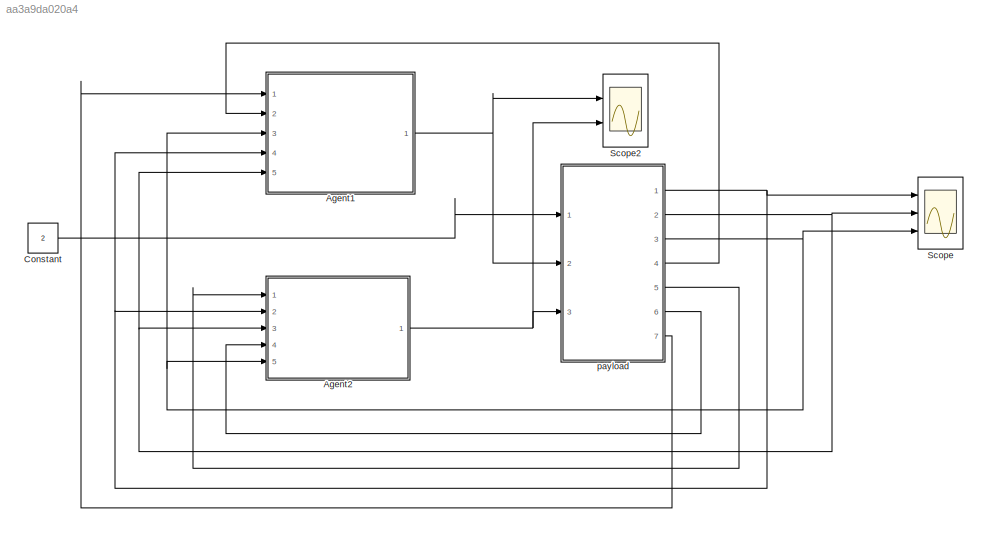
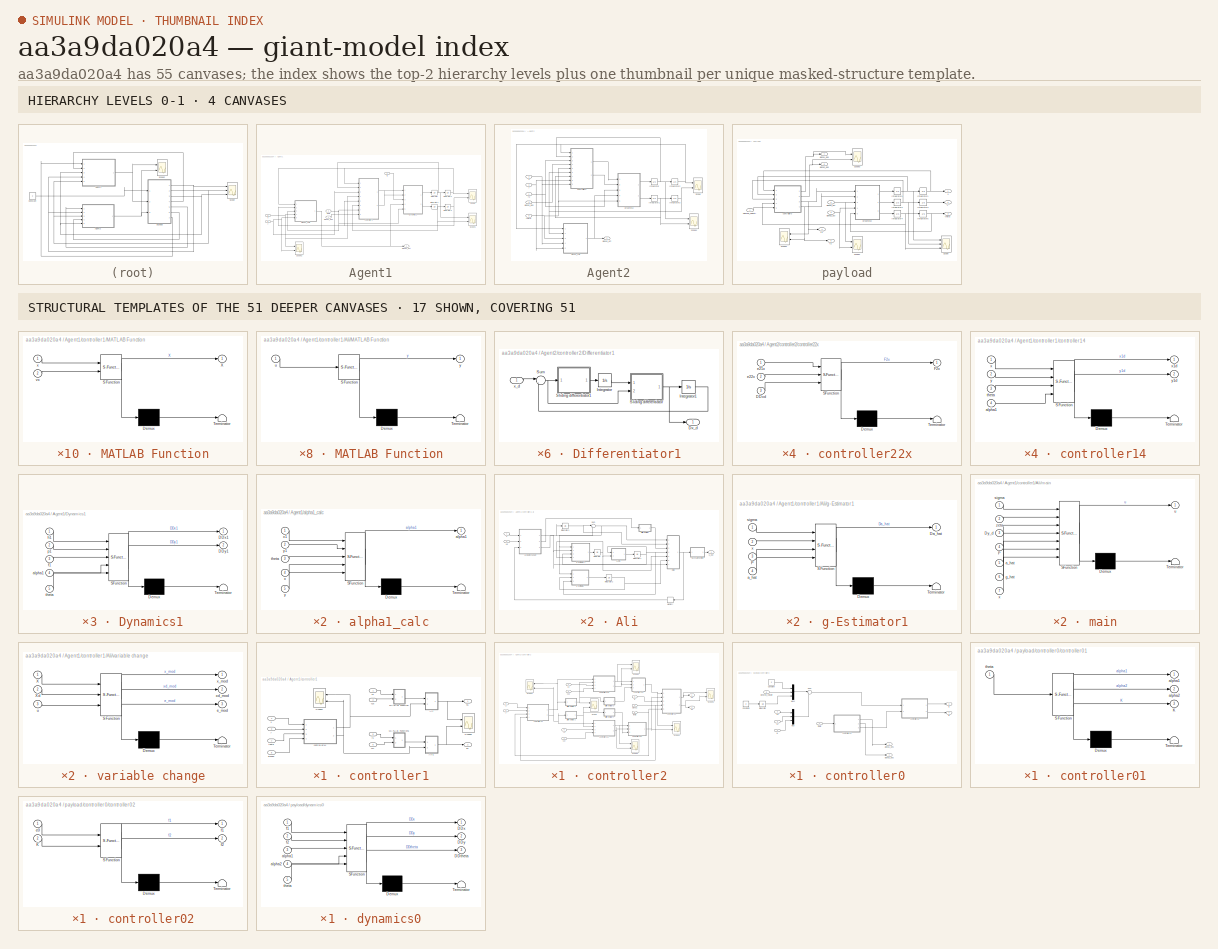
[diagram: thumbnail index - top-2 hierarchy levels (4 canvases) + 17 structural-template representatives of the remaining 51 canvases]
MODEL slx_aa3a9da020a4
KIND model
CONFIG AbsTol = auto
CONFIG EnableMultiTasking = off
CONFIG FixedStep = auto
CONFIG InitFcn = Simple_2Quad_payload_03_const
CONFIG MaxStep = auto
CONFIG MinStep = auto
CONFIG RelTol = 1e-3
CONFIG SampleTimeConstraint = Unconstrained
CONFIG Solver = VariableStepAuto
CONFIG SolverName = VariableStepAuto
CONFIG StartTime = 0.0
CONFIG StopTime = 60
BLOCK [SubSystem] Agent1
  Ports = [5, 1]
  RequestExecContextInheritance = off
BLOCK [SubSystem] Agent1/Dynamics1
  ErrorFcn = Stateflow.Translate.translate
  PermitHierarchicalResolution = ExplicitOnly
  Ports = [5, 2]
  RequestExecContextInheritance = off
  SFBlockType = MATLAB Function
  TreatAsAtomicUnit = on
BLOCK [Demux] Agent1/Dynamics1/ Demux 
  Outputs = 1
  Ports = [1, 1]
BLOCK [S-Function] Agent1/Dynamics1/ SFunction 
  EnableBusSupport = on
  FunctionName = sf_sfun
  Parameters = g,m1
  PortCounts = [5 3]
  Ports = [5, 3]
  SFcnIsStateOwnerBlock = off
  SFunctionDeploymentMode = off
  Tag = Stateflow S-Function Simple_2Quad_payload_03 2
BLOCK [Terminator] Agent1/Dynamics1/ Terminator 
BLOCK [Outport] Agent1/Dynamics1/DDx1
  IconDisplay = Port number
BLOCK [Outport] Agent1/Dynamics1/DDy1
  IconDisplay = Port number
  Port = 2
BLOCK [Inport] Agent1/Dynamics1/alpha1
  IconDisplay = Port number
  Port = 4
BLOCK [Inport] Agent1/Dynamics1/f1
  IconDisplay = Port number
  Port = 3
BLOCK [Inport] Agent1/Dynamics1/h1
  IconDisplay = Port number
BLOCK [Inport] Agent1/Dynamics1/p1
  IconDisplay = Port number
  Port = 2
BLOCK [Inport] Agent1/Dynamics1/theta
  IconDisplay = Port number
  Port = 5
BLOCK [Integrator] Agent1/Integrator
  Ports = [1, 1]
BLOCK [Integrator] Agent1/Integrator1
  Ports = [1, 1]
BLOCK [Integrator] Agent1/Integrator2
  InitialCondition = 1
  Ports = [1, 1]
BLOCK [Integrator] Agent1/Integrator3
  InitialCondition = 10
  Ports = [1, 1]
BLOCK [Scope] Agent1/Scope
  Floating = off
  NumInputPorts = 2
  Ports = [2]
  ScopeSpecificationString = Simulink.scopes.TimeScopeBlockCfg('CurrentConfiguration', extmgr.ConfigurationSet(extmgr.Configuration('Core','General UI',true),extmgr.Configuration('Core','Source UI',true),extmgr.Configuration('Sources','WiredSimulink',true,'DataLoggingVariableName','ScopeData1'),extmgr.Configuration('Visuals','Time Domain',true,'SerializedDisplays',{struct('MinYLimReal','0.97143','MaxYLimReal','1.25716','YLabe...<+2017ch>
BLOCK [Scope] Agent1/Scope1
  Floating = off
  NumInputPorts = 2
  Ports = [2]
  ScopeSpecificationString = Simulink.scopes.TimeScopeBlockCfg('CurrentConfiguration', extmgr.ConfigurationSet(extmgr.Configuration('Core','General UI',true),extmgr.Configuration('Core','Source UI',true),extmgr.Configuration('Sources','WiredSimulink',true,'DataLoggingVariableName','ScopeData2'),extmgr.Configuration('Visuals','Time Domain',true,'SerializedDisplays',{struct('MinYLimReal','-31.21487','MaxYLimReal','4.15648','YLa...<+2021ch>
BLOCK [Scope] Agent1/Scope2
  Floating = off
  NumInputPorts = 2
  Ports = [2]
  ScopeSpecificationString = Simulink.scopes.TimeScopeBlockCfg('CurrentConfiguration', extmgr.ConfigurationSet(extmgr.Configuration('Core','General UI',true),extmgr.Configuration('Core','Source UI',true),extmgr.Configuration('Sources','WiredSimulink',true,'DataLoggingVariableName','ScopeData14'),extmgr.Configuration('Visuals','Time Domain',true,'SerializedDisplays',{struct('MinYLimReal','52.20098','MaxYLimReal','61.18109','YL...<+2021ch>
BLOCK [Outport] Agent1/alpha1_act
  IconDisplay = Port number
BLOCK [SubSystem] Agent1/alpha1_calc
  ErrorFcn = Stateflow.Translate.translate
  PermitHierarchicalResolution = ExplicitOnly
  Ports = [5, 1]
  RequestExecContextInheritance = off
  SFBlockType = MATLAB Function
  TreatAsAtomicUnit = on
BLOCK [Demux] Agent1/alpha1_calc/ Demux 
  Outputs = 1
  Ports = [1, 1]
BLOCK [S-Function] Agent1/alpha1_calc/ SFunction 
  EnableBusSupport = on
  FunctionName = sf_sfun
  Parameters = d
  PortCounts = [5 2]
  Ports = [5, 2]
  SFcnIsStateOwnerBlock = off
  SFunctionDeploymentMode = off
  Tag = Stateflow S-Function Simple_2Quad_payload_03 11
BLOCK [Terminator] Agent1/alpha1_calc/ Terminator 
BLOCK [Outport] Agent1/alpha1_calc/alpha1
  IconDisplay = Port number
BLOCK [Inport] Agent1/alpha1_calc/theta
  IconDisplay = Port number
  Port = 3
BLOCK [Inport] Agent1/alpha1_calc/x
  IconDisplay = Port number
  Port = 4
BLOCK [Inport] Agent1/alpha1_calc/x1
  IconDisplay = Port number
BLOCK [Inport] Agent1/alpha1_calc/y
  IconDisplay = Port number
  Port = 5
BLOCK [Inport] Agent1/alpha1_calc/y1
  IconDisplay = Port number
  Port = 2
BLOCK [Inport] Agent1/alpha1_des
  IconDisplay = Port number
BLOCK [SubSystem] Agent1/controller1
  Ports = [8, 2]
  RequestExecContextInheritance = off
BLOCK [SubSystem] Agent1/controller1/Ali
  Ports = [2, 1]
  RequestExecContextInheritance = off
BLOCK [SubSystem] Agent1/controller1/Ali/CARE
  ErrorFcn = Stateflow.Translate.translate
  PermitHierarchicalResolution = ExplicitOnly
  Ports = [2, 1]
  RequestExecContextInheritance = off
  SFBlockType = MATLAB Function
  TreatAsAtomicUnit = on
BLOCK [Demux] Agent1/controller1/Ali/CARE/ Demux 
  Outputs = 1
  Ports = [1, 1]
BLOCK [S-Function] Agent1/controller1/Ali/CARE/ SFunction 
  EnableBusSupport = on
  FunctionName = sf_sfun
  Parameters = B,Q,R
  PortCounts = [2 2]
  Ports = [2, 2]
  SFcnIsStateOwnerBlock = off
  SFunctionDeploymentMode = off
  Tag = Stateflow S-Function Simple_2Quad_payload_03 1
BLOCK [Terminator] Agent1/controller1/Ali/CARE/ Terminator 
BLOCK [Outport] Agent1/controller1/Ali/CARE/DP
  IconDisplay = Port number
BLOCK [Inport] Agent1/controller1/Ali/CARE/P
  IconDisplay = Port number
BLOCK [Inport] Agent1/controller1/Ali/CARE/a_hat
  IconDisplay = Port number
  Port = 2
BLOCK [SubSystem] Agent1/controller1/Ali/Differentiator
  Ports = [1, 1]
  RequestExecContextInheritance = off
BLOCK [Outport] Agent1/controller1/Ali/Differentiator/Dx_d
  IconDisplay = Port number
BLOCK [Integrator] Agent1/controller1/Ali/Differentiator/Integrator
  InitialCondition = zeros(n,1)
  Ports = [1, 1]
BLOCK [Integrator] Agent1/controller1/Ali/Differentiator/Integrator1
  InitialCondition = zeros(n,1)
  Ports = [1, 1]
BLOCK [SubSystem] Agent1/controller1/Ali/Differentiator/Sliding differentiator
  ErrorFcn = Stateflow.Translate.translate
  PermitHierarchicalResolution = ExplicitOnly
  Ports = [2, 1]
  RequestExecContextInheritance = off
  SFBlockType = MATLAB Function
  TreatAsAtomicUnit = on
BLOCK [Demux] Agent1/controller1/Ali/Differentiator/Sliding differentiator/ Demux 
  Outputs = 1
  Ports = [1, 1]
BLOCK [S-Function] Agent1/controller1/Ali/Differentiator/Sliding differentiator/ SFunction 
  EnableBusSupport = on
  FunctionName = sf_sfun
  Parameters = k1,n
  PortCounts = [2 2]
  Ports = [2, 2]
  SFcnIsStateOwnerBlock = off
  SFunctionDeploymentMode = off
  Tag = Stateflow S-Function Simple_2Quad_payload_03 3
BLOCK [Terminator] Agent1/controller1/Ali/Differentiator/Sliding differentiator/ Terminator 
BLOCK [Inport] Agent1/controller1/Ali/Differentiator/Sliding differentiator/e
  IconDisplay = Port number
  Port = 2
BLOCK [Outport] Agent1/controller1/Ali/Differentiator/Sliding differentiator/u
  IconDisplay = Port number
BLOCK [Inport] Agent1/controller1/Ali/Differentiator/Sliding differentiator/u1
  IconDisplay = Port number
BLOCK [SubSystem] Agent1/controller1/Ali/Differentiator/Sliding differentiator1
  ErrorFcn = Stateflow.Translate.translate
  PermitHierarchicalResolution = ExplicitOnly
  Ports = [1, 1]
  RequestExecContextInheritance = off
  SFBlockType = MATLAB Function
  TreatAsAtomicUnit = on
BLOCK [Demux] Agent1/controller1/Ali/Differentiator/Sliding differentiator1/ Demux 
  Outputs = 1
  Ports = [1, 1]
BLOCK [S-Function] Agent1/controller1/Ali/Differentiator/Sliding differentiator1/ SFunction 
  EnableBusSupport = on
  FunctionName = sf_sfun
  Parameters = k2,n
  PortCounts = [1 2]
  Ports = [1, 2]
  SFcnIsStateOwnerBlock = off
  SFunctionDeploymentMode = off
  Tag = Stateflow S-Function Simple_2Quad_payload_03 4
BLOCK [Terminator] Agent1/controller1/Ali/Differentiator/Sliding differentiator1/ Terminator 
BLOCK [Outport] Agent1/controller1/Ali/Differentiator/Sliding differentiator1/Du1
  IconDisplay = Port number
BLOCK [Inport] Agent1/controller1/Ali/Differentiator/Sliding differentiator1/e
  IconDisplay = Port number
BLOCK [Sum] Agent1/controller1/Ali/Differentiator/Sum
  IconShape = round
  InputSameDT = off
  Inputs = |-+
  OutDataTypeStr = Inherit: Inherit via internal rule
  Ports = [2, 1]
  SaturateOnIntegerOverflow = off
BLOCK [Inport] Agent1/controller1/Ali/Differentiator/x_d
  IconDisplay = Port number
BLOCK [Integrator] Agent1/controller1/Ali/Integrator
  InitialCondition = zeros(n)
  Ports = [1, 1]
BLOCK [Integrator] Agent1/controller1/Ali/Integrator1
  InitialCondition = eye(n)
  Ports = [1, 1]
BLOCK [Integrator] Agent1/controller1/Ali/Integrator2
  InitialCondition = zeros(n,1)
  Ports = [1, 1]
BLOCK [Integrator] Agent1/controller1/Ali/Integrator3
  InitialCondition = zeros(n,1)
  Ports = [1, 1]
BLOCK [SubSystem] Agent1/controller1/Ali/MATLAB Function
  ErrorFcn = Stateflow.Translate.translate
  PermitHierarchicalResolution = ExplicitOnly
  Ports = [1, 1]
  RequestExecContextInheritance = off
  SFBlockType = MATLAB Function
  TreatAsAtomicUnit = on
BLOCK [Demux] Agent1/controller1/Ali/MATLAB Function/ Demux 
  Outputs = 1
  Ports = [1, 1]
BLOCK [S-Function] Agent1/controller1/Ali/MATLAB Function/ SFunction 
  EnableBusSupport = on
  FunctionName = sf_sfun
  PortCounts = [1 2]
  Ports = [1, 2]
  SFcnIsStateOwnerBlock = off
  SFunctionDeploymentMode = off
  Tag = Stateflow S-Function Simple_2Quad_payload_03 38
BLOCK [Terminator] Agent1/controller1/Ali/MATLAB Function/ Terminator 
BLOCK [Inport] Agent1/controller1/Ali/MATLAB Function/u
  IconDisplay = Port number
BLOCK [Outport] Agent1/controller1/Ali/MATLAB Function/y
  IconDisplay = Port number
BLOCK [Memory] Agent1/controller1/Ali/Memory
  InitialCondition = zeros(n,1)
BLOCK [Sum] Agent1/controller1/Ali/Sum
  IconShape = round
  InputSameDT = off
  Inputs = |++
  OutDataTypeStr = Inherit: Inherit via internal rule
  Ports = [2, 1]
  SaturateOnIntegerOverflow = off
BLOCK [SubSystem] Agent1/controller1/Ali/g-Estimator
  ErrorFcn = Stateflow.Translate.translate
  PermitHierarchicalResolution = ExplicitOnly
  Ports = [3, 1]
  RequestExecContextInheritance = off
  SFBlockType = MATLAB Function
  TreatAsAtomicUnit = on
BLOCK [Demux] Agent1/controller1/Ali/g-Estimator/ Demux 
  Outputs = 1
  Ports = [1, 1]
BLOCK [S-Function] Agent1/controller1/Ali/g-Estimator/ SFunction 
  EnableBusSupport = on
  FunctionName = sf_sfun
  Parameters = gamma_1,rho_1
  PortCounts = [3 2]
  Ports = [3, 2]
  SFcnIsStateOwnerBlock = off
  SFunctionDeploymentMode = off
  Tag = Stateflow S-Function Simple_2Quad_payload_03 25
BLOCK [Terminator] Agent1/controller1/Ali/g-Estimator/ Terminator 
BLOCK [Outport] Agent1/controller1/Ali/g-Estimator/Dg_hat
  IconDisplay = Port number
BLOCK [Inport] Agent1/controller1/Ali/g-Estimator/P
  IconDisplay = Port number
  Port = 3
BLOCK [Inport] Agent1/controller1/Ali/g-Estimator/g_hat
  IconDisplay = Port number
  Port = 2
BLOCK [Inport] Agent1/controller1/Ali/g-Estimator/sigma
  IconDisplay = Port number
BLOCK [SubSystem] Agent1/controller1/Ali/g-Estimator1
  ErrorFcn = Stateflow.Translate.translate
  PermitHierarchicalResolution = ExplicitOnly
  Ports = [4, 1]
  RequestExecContextInheritance = off
  SFBlockType = MATLAB Function
  TreatAsAtomicUnit = on
BLOCK [Demux] Agent1/controller1/Ali/g-Estimator1/ Demux 
  Outputs = 1
  Ports = [1, 1]
BLOCK [S-Function] Agent1/controller1/Ali/g-Estimator1/ SFunction 
  EnableBusSupport = on
  FunctionName = sf_sfun
  Parameters = gamma_0,rho_0
  PortCounts = [4 2]
  Ports = [4, 2]
  SFcnIsStateOwnerBlock = off
  SFunctionDeploymentMode = off
  Tag = Stateflow S-Function Simple_2Quad_payload_03 26
BLOCK [Terminator] Agent1/controller1/Ali/g-Estimator1/ Terminator 
BLOCK [Outport] Agent1/controller1/Ali/g-Estimator1/Da_hat
  IconDisplay = Port number
BLOCK [Inport] Agent1/controller1/Ali/g-Estimator1/P
  IconDisplay = Port number
  Port = 3
BLOCK [Inport] Agent1/controller1/Ali/g-Estimator1/a_hat
  IconDisplay = Port number
  Port = 4
BLOCK [Inport] Agent1/controller1/Ali/g-Estimator1/sigma
  IconDisplay = Port number
BLOCK [Inport] Agent1/controller1/Ali/g-Estimator1/x
  IconDisplay = Port number
  Port = 2
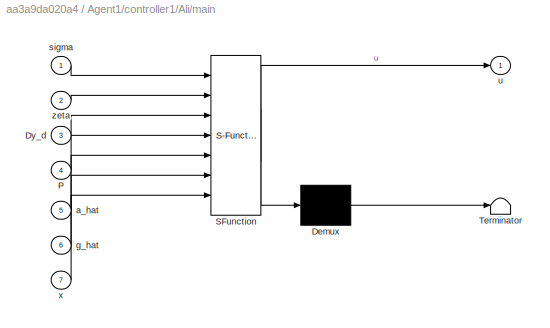
BLOCK [SubSystem] Agent1/controller1/Ali/main
  ErrorFcn = Stateflow.Translate.translate
  PermitHierarchicalResolution = ExplicitOnly
  Ports = [7, 1]
  RequestExecContextInheritance = off
  SFBlockType = MATLAB Function
  TreatAsAtomicUnit = on
BLOCK [Demux] Agent1/controller1/Ali/main/ Demux 
  Outputs = 1
  Ports = [1, 1]
BLOCK [S-Function] Agent1/controller1/Ali/main/ SFunction 
  EnableBusSupport = on
  FunctionName = sf_sfun
  Parameters = B,BBT_inv,Q,R,n
  PortCounts = [7 2]
  Ports = [7, 2]
  SFcnIsStateOwnerBlock = off
  SFunctionDeploymentMode = off
  Tag = Stateflow S-Function Simple_2Quad_payload_03 27
BLOCK [Terminator] Agent1/controller1/Ali/main/ Terminator 
BLOCK [Inport] Agent1/controller1/Ali/main/Dy_d
  IconDisplay = Port number
  Port = 3
BLOCK [Inport] Agent1/controller1/Ali/main/P
  IconDisplay = Port number
  Port = 4
BLOCK [Inport] Agent1/controller1/Ali/main/a_hat
  IconDisplay = Port number
  Port = 5
BLOCK [Inport] Agent1/controller1/Ali/main/g_hat
  IconDisplay = Port number
  Port = 6
BLOCK [Inport] Agent1/controller1/Ali/main/sigma
  IconDisplay = Port number
BLOCK [Outport] Agent1/controller1/Ali/main/u
  IconDisplay = Port number
BLOCK [Inport] Agent1/controller1/Ali/main/x
  IconDisplay = Port number
  Port = 7
BLOCK [Inport] Agent1/controller1/Ali/main/zeta
  IconDisplay = Port number
  Port = 2
BLOCK [Outport] Agent1/controller1/Ali/u_out
  IconDisplay = Port number
BLOCK [SubSystem] Agent1/controller1/Ali/variable change
  ErrorFcn = Stateflow.Translate.translate
  PermitHierarchicalResolution = ExplicitOnly
  Ports = [3, 3]
  RequestExecContextInheritance = off
  SFBlockType = MATLAB Function
  TreatAsAtomicUnit = on
BLOCK [Demux] Agent1/controller1/Ali/variable change/ Demux 
  Outputs = 1
  Ports = [1, 1]
BLOCK [S-Function] Agent1/controller1/Ali/variable change/ SFunction 
  EnableBusSupport = on
  FunctionName = sf_sfun
  PortCounts = [3 4]
  Ports = [3, 4]
  SFcnIsStateOwnerBlock = off
  SFunctionDeploymentMode = off
  Tag = Stateflow S-Function Simple_2Quad_payload_03 28
BLOCK [Terminator] Agent1/controller1/Ali/variable change/ Terminator 
BLOCK [Inport] Agent1/controller1/Ali/variable change/X
  IconDisplay = Port number
BLOCK [Inport] Agent1/controller1/Ali/variable change/Xd
  IconDisplay = Port number
  Port = 2
BLOCK [Outport] Agent1/controller1/Ali/variable change/e_mod
  IconDisplay = Port number
  Port = 3
BLOCK [Inport] Agent1/controller1/Ali/variable change/u
  IconDisplay = Port number
  Port = 3
BLOCK [Outport] Agent1/controller1/Ali/variable change/x_mod
  IconDisplay = Port number
BLOCK [Outport] Agent1/controller1/Ali/variable change/xd_mod
  IconDisplay = Port number
  Port = 2
BLOCK [Inport] Agent1/controller1/Ali/x
  IconDisplay = Port number
BLOCK [Inport] Agent1/controller1/Ali/xd
  IconDisplay = Port number
  Port = 2
BLOCK [SubSystem] Agent1/controller1/Ali1
  Ports = [2, 1]
  RequestExecContextInheritance = off
BLOCK [SubSystem] Agent1/controller1/Ali1/CARE
  ErrorFcn = Stateflow.Translate.translate
  PermitHierarchicalResolution = ExplicitOnly
  Ports = [2, 1]
  RequestExecContextInheritance = off
  SFBlockType = MATLAB Function
  TreatAsAtomicUnit = on
BLOCK [Demux] Agent1/controller1/Ali1/CARE/ Demux 
  Outputs = 1
  Ports = [1, 1]
BLOCK [S-Function] Agent1/controller1/Ali1/CARE/ SFunction 
  EnableBusSupport = on
  FunctionName = sf_sfun
  Parameters = B,Q,R
  PortCounts = [2 2]
  Ports = [2, 2]
  SFcnIsStateOwnerBlock = off
  SFunctionDeploymentMode = off
  Tag = Stateflow S-Function Simple_2Quad_payload_03 29
BLOCK [Terminator] Agent1/controller1/Ali1/CARE/ Terminator 
BLOCK [Outport] Agent1/controller1/Ali1/CARE/DP
  IconDisplay = Port number
BLOCK [Inport] Agent1/controller1/Ali1/CARE/P
  IconDisplay = Port number
BLOCK [Inport] Agent1/controller1/Ali1/CARE/a_hat
  IconDisplay = Port number
  Port = 2
BLOCK [SubSystem] Agent1/controller1/Ali1/Differentiator
  Ports = [1, 1]
  RequestExecContextInheritance = off
BLOCK [Outport] Agent1/controller1/Ali1/Differentiator/Dx_d
  IconDisplay = Port number
BLOCK [Integrator] Agent1/controller1/Ali1/Differentiator/Integrator
  InitialCondition = zeros(n,1)
  Ports = [1, 1]
BLOCK [Integrator] Agent1/controller1/Ali1/Differentiator/Integrator1
  InitialCondition = zeros(n,1)
  Ports = [1, 1]
BLOCK [SubSystem] Agent1/controller1/Ali1/Differentiator/Sliding differentiator
  ErrorFcn = Stateflow.Translate.translate
  PermitHierarchicalResolution = ExplicitOnly
  Ports = [2, 1]
  RequestExecContextInheritance = off
  SFBlockType = MATLAB Function
  TreatAsAtomicUnit = on
BLOCK [Demux] Agent1/controller1/Ali1/Differentiator/Sliding differentiator/ Demux 
  Outputs = 1
  Ports = [1, 1]
BLOCK [S-Function] Agent1/controller1/Ali1/Differentiator/Sliding differentiator/ SFunction 
  EnableBusSupport = on
  FunctionName = sf_sfun
  Parameters = k1,n
  PortCounts = [2 2]
  Ports = [2, 2]
  SFcnIsStateOwnerBlock = off
  SFunctionDeploymentMode = off
  Tag = Stateflow S-Function Simple_2Quad_payload_03 30
BLOCK [Terminator] Agent1/controller1/Ali1/Differentiator/Sliding differentiator/ Terminator 
BLOCK [Inport] Agent1/controller1/Ali1/Differentiator/Sliding differentiator/e
  IconDisplay = Port number
  Port = 2
BLOCK [Outport] Agent1/controller1/Ali1/Differentiator/Sliding differentiator/u
  IconDisplay = Port number
BLOCK [Inport] Agent1/controller1/Ali1/Differentiator/Sliding differentiator/u1
  IconDisplay = Port number
BLOCK [SubSystem] Agent1/controller1/Ali1/Differentiator/Sliding differentiator1
  ErrorFcn = Stateflow.Translate.translate
  PermitHierarchicalResolution = ExplicitOnly
  Ports = [1, 1]
  RequestExecContextInheritance = off
  SFBlockType = MATLAB Function
  TreatAsAtomicUnit = on
BLOCK [Demux] Agent1/controller1/Ali1/Differentiator/Sliding differentiator1/ Demux 
  Outputs = 1
  Ports = [1, 1]
BLOCK [S-Function] Agent1/controller1/Ali1/Differentiator/Sliding differentiator1/ SFunction 
  EnableBusSupport = on
  FunctionName = sf_sfun
  Parameters = k2,n
  PortCounts = [1 2]
  Ports = [1, 2]
  SFcnIsStateOwnerBlock = off
  SFunctionDeploymentMode = off
  Tag = Stateflow S-Function Simple_2Quad_payload_03 31
BLOCK [Terminator] Agent1/controller1/Ali1/Differentiator/Sliding differentiator1/ Terminator 
BLOCK [Outport] Agent1/controller1/Ali1/Differentiator/Sliding differentiator1/Du1
  IconDisplay = Port number
BLOCK [Inport] Agent1/controller1/Ali1/Differentiator/Sliding differentiator1/e
  IconDisplay = Port number
BLOCK [Sum] Agent1/controller1/Ali1/Differentiator/Sum
  IconShape = round
  InputSameDT = off
  Inputs = |-+
  OutDataTypeStr = Inherit: Inherit via internal rule
  Ports = [2, 1]
  SaturateOnIntegerOverflow = off
BLOCK [Inport] Agent1/controller1/Ali1/Differentiator/x_d
  IconDisplay = Port number
BLOCK [Integrator] Agent1/controller1/Ali1/Integrator
  InitialCondition = zeros(n)
  Ports = [1, 1]
BLOCK [Integrator] Agent1/controller1/Ali1/Integrator1
  InitialCondition = eye(n)
  Ports = [1, 1]
BLOCK [Integrator] Agent1/controller1/Ali1/Integrator2
  InitialCondition = zeros(n,1)
  Ports = [1, 1]
BLOCK [Integrator] Agent1/controller1/Ali1/Integrator3
  InitialCondition = zeros(n,1)
  Ports = [1, 1]
BLOCK [SubSystem] Agent1/controller1/Ali1/MATLAB Function
  ErrorFcn = Stateflow.Translate.translate
  PermitHierarchicalResolution = ExplicitOnly
  Ports = [1, 1]
  RequestExecContextInheritance = off
  SFBlockType = MATLAB Function
  TreatAsAtomicUnit = on
BLOCK [Demux] Agent1/controller1/Ali1/MATLAB Function/ Demux 
  Outputs = 1
  Ports = [1, 1]
BLOCK [S-Function] Agent1/controller1/Ali1/MATLAB Function/ SFunction 
  EnableBusSupport = on
  FunctionName = sf_sfun
  PortCounts = [1 2]
  Ports = [1, 2]
  SFcnIsStateOwnerBlock = off
  SFunctionDeploymentMode = off
  Tag = Stateflow S-Function Simple_2Quad_payload_03 39
BLOCK [Terminator] Agent1/controller1/Ali1/MATLAB Function/ Terminator 
BLOCK [Inport] Agent1/controller1/Ali1/MATLAB Function/u
  IconDisplay = Port number
BLOCK [Outport] Agent1/controller1/Ali1/MATLAB Function/y
  IconDisplay = Port number
BLOCK [Memory] Agent1/controller1/Ali1/Memory
  InitialCondition = zeros(n,1)
BLOCK [Sum] Agent1/controller1/Ali1/Sum
  IconShape = round
  InputSameDT = off
  Inputs = |++
  OutDataTypeStr = Inherit: Inherit via internal rule
  Ports = [2, 1]
  SaturateOnIntegerOverflow = off
BLOCK [SubSystem] Agent1/controller1/Ali1/g-Estimator
  ErrorFcn = Stateflow.Translate.translate
  PermitHierarchicalResolution = ExplicitOnly
  Ports = [3, 1]
  RequestExecContextInheritance = off
  SFBlockType = MATLAB Function
  TreatAsAtomicUnit = on
BLOCK [Demux] Agent1/controller1/Ali1/g-Estimator/ Demux 
  Outputs = 1
  Ports = [1, 1]
BLOCK [S-Function] Agent1/controller1/Ali1/g-Estimator/ SFunction 
  EnableBusSupport = on
  FunctionName = sf_sfun
  Parameters = gamma_1,rho_1
  PortCounts = [3 2]
  Ports = [3, 2]
  SFcnIsStateOwnerBlock = off
  SFunctionDeploymentMode = off
  Tag = Stateflow S-Function Simple_2Quad_payload_03 32
BLOCK [Terminator] Agent1/controller1/Ali1/g-Estimator/ Terminator 
BLOCK [Outport] Agent1/controller1/Ali1/g-Estimator/Dg_hat
  IconDisplay = Port number
BLOCK [Inport] Agent1/controller1/Ali1/g-Estimator/P
  IconDisplay = Port number
  Port = 3
BLOCK [Inport] Agent1/controller1/Ali1/g-Estimator/g_hat
  IconDisplay = Port number
  Port = 2
BLOCK [Inport] Agent1/controller1/Ali1/g-Estimator/sigma
  IconDisplay = Port number
BLOCK [SubSystem] Agent1/controller1/Ali1/g-Estimator1
  ErrorFcn = Stateflow.Translate.translate
  PermitHierarchicalResolution = ExplicitOnly
  Ports = [4, 1]
  RequestExecContextInheritance = off
  SFBlockType = MATLAB Function
  TreatAsAtomicUnit = on
BLOCK [Demux] Agent1/controller1/Ali1/g-Estimator1/ Demux 
  Outputs = 1
  Ports = [1, 1]
BLOCK [S-Function] Agent1/controller1/Ali1/g-Estimator1/ SFunction 
  EnableBusSupport = on
  FunctionName = sf_sfun
  Parameters = gamma_0,rho_0
  PortCounts = [4 2]
  Ports = [4, 2]
  SFcnIsStateOwnerBlock = off
  SFunctionDeploymentMode = off
  Tag = Stateflow S-Function Simple_2Quad_payload_03 33
BLOCK [Terminator] Agent1/controller1/Ali1/g-Estimator1/ Terminator 
BLOCK [Outport] Agent1/controller1/Ali1/g-Estimator1/Da_hat
  IconDisplay = Port number
BLOCK [Inport] Agent1/controller1/Ali1/g-Estimator1/P
  IconDisplay = Port number
  Port = 3
BLOCK [Inport] Agent1/controller1/Ali1/g-Estimator1/a_hat
  IconDisplay = Port number
  Port = 4
BLOCK [Inport] Agent1/controller1/Ali1/g-Estimator1/sigma
  IconDisplay = Port number
BLOCK [Inport] Agent1/controller1/Ali1/g-Estimator1/x
  IconDisplay = Port number
  Port = 2
BLOCK [SubSystem] Agent1/controller1/Ali1/main
  ErrorFcn = Stateflow.Translate.translate
  PermitHierarchicalResolution = ExplicitOnly
  Ports = [7, 1]
  RequestExecContextInheritance = off
  SFBlockType = MATLAB Function
  TreatAsAtomicUnit = on
BLOCK [Demux] Agent1/controller1/Ali1/main/ Demux 
  Outputs = 1
  Ports = [1, 1]
BLOCK [S-Function] Agent1/controller1/Ali1/main/ SFunction 
  EnableBusSupport = on
  FunctionName = sf_sfun
  Parameters = B,BBT_inv,Q,R,n
  PortCounts = [7 2]
  Ports = [7, 2]
  SFcnIsStateOwnerBlock = off
  SFunctionDeploymentMode = off
  Tag = Stateflow S-Function Simple_2Quad_payload_03 36
BLOCK [Terminator] Agent1/controller1/Ali1/main/ Terminator 
BLOCK [Inport] Agent1/controller1/Ali1/main/Dy_d
  IconDisplay = Port number
  Port = 3
BLOCK [Inport] Agent1/controller1/Ali1/main/P
  IconDisplay = Port number
  Port = 4
BLOCK [Inport] Agent1/controller1/Ali1/main/a_hat
  IconDisplay = Port number
  Port = 5
BLOCK [Inport] Agent1/controller1/Ali1/main/g_hat
  IconDisplay = Port number
  Port = 6
BLOCK [Inport] Agent1/controller1/Ali1/main/sigma
  IconDisplay = Port number
BLOCK [Outport] Agent1/controller1/Ali1/main/u
  IconDisplay = Port number
BLOCK [Inport] Agent1/controller1/Ali1/main/x
  IconDisplay = Port number
  Port = 7
BLOCK [Inport] Agent1/controller1/Ali1/main/zeta
  IconDisplay = Port number
  Port = 2
BLOCK [Outport] Agent1/controller1/Ali1/u_out
  IconDisplay = Port number
BLOCK [SubSystem] Agent1/controller1/Ali1/variable change
  ErrorFcn = Stateflow.Translate.translate
  PermitHierarchicalResolution = ExplicitOnly
  Ports = [3, 3]
  RequestExecContextInheritance = off
  SFBlockType = MATLAB Function
  TreatAsAtomicUnit = on
BLOCK [Demux] Agent1/controller1/Ali1/variable change/ Demux 
  Outputs = 1
  Ports = [1, 1]
BLOCK [S-Function] Agent1/controller1/Ali1/variable change/ SFunction 
  EnableBusSupport = on
  FunctionName = sf_sfun
  PortCounts = [3 4]
  Ports = [3, 4]
  SFcnIsStateOwnerBlock = off
  SFunctionDeploymentMode = off
  Tag = Stateflow S-Function Simple_2Quad_payload_03 37
BLOCK [Terminator] Agent1/controller1/Ali1/variable change/ Terminator 
BLOCK [Inport] Agent1/controller1/Ali1/variable change/X
  IconDisplay = Port number
BLOCK [Inport] Agent1/controller1/Ali1/variable change/Xd
  IconDisplay = Port number
  Port = 2
BLOCK [Outport] Agent1/controller1/Ali1/variable change/e_mod
  IconDisplay = Port number
  Port = 3
BLOCK [Inport] Agent1/controller1/Ali1/variable change/u
  IconDisplay = Port number
  Port = 3
BLOCK [Outport] Agent1/controller1/Ali1/variable change/x_mod
  IconDisplay = Port number
BLOCK [Outport] Agent1/controller1/Ali1/variable change/xd_mod
  IconDisplay = Port number
  Port = 2
BLOCK [Inport] Agent1/controller1/Ali1/x
  IconDisplay = Port number
BLOCK [Inport] Agent1/controller1/Ali1/xd
  IconDisplay = Port number
  Port = 2
BLOCK [SubSystem] Agent1/controller1/MATLAB Function
  ErrorFcn = Stateflow.Translate.translate
  PermitHierarchicalResolution = ExplicitOnly
  Ports = [2, 1]
  RequestExecContextInheritance = off
  SFBlockType = MATLAB Function
  TreatAsAtomicUnit = on
BLOCK [Demux] Agent1/controller1/MATLAB Function/ Demux 
  Outputs = 1
  Ports = [1, 1]
BLOCK [S-Function] Agent1/controller1/MATLAB Function/ SFunction 
  EnableBusSupport = on
  FunctionName = sf_sfun
  PortCounts = [2 2]
  Ports = [2, 2]
  SFcnIsStateOwnerBlock = off
  SFunctionDeploymentMode = off
  Tag = Stateflow S-Function Simple_2Quad_payload_03 34
BLOCK [Terminator] Agent1/controller1/MATLAB Function/ Terminator 
BLOCK [Outport] Agent1/controller1/MATLAB Function/X
  IconDisplay = Port number
BLOCK [Inport] Agent1/controller1/MATLAB Function/vx
  IconDisplay = Port number
  Port = 2
BLOCK [Inport] Agent1/controller1/MATLAB Function/x
  IconDisplay = Port number
BLOCK [SubSystem] Agent1/controller1/MATLAB Function1
  ErrorFcn = Stateflow.Translate.translate
  PermitHierarchicalResolution = ExplicitOnly
  Ports = [2, 1]
  RequestExecContextInheritance = off
  SFBlockType = MATLAB Function
  TreatAsAtomicUnit = on
BLOCK [Demux] Agent1/controller1/MATLAB Function1/ Demux 
  Outputs = 1
  Ports = [1, 1]
BLOCK [S-Function] Agent1/controller1/MATLAB Function1/ SFunction 
  EnableBusSupport = on
  FunctionName = sf_sfun
  PortCounts = [2 2]
  Ports = [2, 2]
  SFcnIsStateOwnerBlock = off
  SFunctionDeploymentMode = off
  Tag = Stateflow S-Function Simple_2Quad_payload_03 40
BLOCK [Terminator] Agent1/controller1/MATLAB Function1/ Terminator 
BLOCK [Outport] Agent1/controller1/MATLAB Function1/X
  IconDisplay = Port number
BLOCK [Inport] Agent1/controller1/MATLAB Function1/vx
  IconDisplay = Port number
  Port = 2
BLOCK [Inport] Agent1/controller1/MATLAB Function1/x
  IconDisplay = Port number
BLOCK [Scope] Agent1/controller1/Scope1
  Floating = off
  NumInputPorts = 2
  Ports = [2]
  ScopeSpecificationString = Simulink.scopes.TimeScopeBlockCfg('CurrentConfiguration', extmgr.ConfigurationSet(extmgr.Configuration('Core','General UI',true),extmgr.Configuration('Core','Source UI',true),extmgr.Configuration('Sources','WiredSimulink',true,'DataLoggingVariableName','ScopeData6'),extmgr.Configuration('Visuals','Time Domain',true,'SerializedDisplays',{struct('MinYLimReal','-10.35873','MaxYLimReal','86.76282','YL...<+2006ch>
BLOCK [Scope] Agent1/controller1/Scope5
  Floating = off
  NumInputPorts = 2
  Ports = [2]
  ScopeSpecificationString = Simulink.scopes.TimeScopeBlockCfg('CurrentConfiguration', extmgr.ConfigurationSet(extmgr.Configuration('Core','General UI',true),extmgr.Configuration('Core','Source UI',true),extmgr.Configuration('Sources','WiredSimulink',true,'DataLoggingVariableName','ScopeData10'),extmgr.Configuration('Visuals','Time Domain',true,'SerializedDisplays',{struct('MinYLimReal','-3.05103','MaxYLimReal','6.19863','YLa...<+2001ch>
BLOCK [Inport] Agent1/controller1/alpha1
  IconDisplay = Port number
  Port = 8
BLOCK [SubSystem] Agent1/controller1/controller14
  ErrorFcn = Stateflow.Translate.translate
  PermitHierarchicalResolution = ExplicitOnly
  Ports = [4, 2]
  RequestExecContextInheritance = off
  SFBlockType = MATLAB Function
  TreatAsAtomicUnit = on
BLOCK [Demux] Agent1/controller1/controller14/ Demux 
  Outputs = 1
  Ports = [1, 1]
BLOCK [S-Function] Agent1/controller1/controller14/ SFunction 
  EnableBusSupport = on
  FunctionName = sf_sfun
  Parameters = d,l1
  PortCounts = [4 3]
  Ports = [4, 3]
  SFcnIsStateOwnerBlock = off
  SFunctionDeploymentMode = off
  Tag = Stateflow S-Function Simple_2Quad_payload_03 35
BLOCK [Terminator] Agent1/controller1/controller14/ Terminator 
BLOCK [Inport] Agent1/controller1/controller14/alpha1
  IconDisplay = Port number
  Port = 4
BLOCK [Inport] Agent1/controller1/controller14/theta
  IconDisplay = Port number
  Port = 3
BLOCK [Inport] Agent1/controller1/controller14/x
  IconDisplay = Port number
BLOCK [Outport] Agent1/controller1/controller14/x1d
  IconDisplay = Port number
BLOCK [Inport] Agent1/controller1/controller14/y
  IconDisplay = Port number
  Port = 2
BLOCK [Outport] Agent1/controller1/controller14/y1d
  IconDisplay = Port number
  Port = 2
BLOCK [Outport] Agent1/controller1/h1
  IconDisplay = Port number
BLOCK [Outport] Agent1/controller1/p1
  IconDisplay = Port number
  Port = 2
BLOCK [Inport] Agent1/controller1/theta
  IconDisplay = Port number
  Port = 7
BLOCK [Inport] Agent1/controller1/v1x
  IconDisplay = Port number
  Port = 2
BLOCK [Inport] Agent1/controller1/v1y
  IconDisplay = Port number
  Port = 6
BLOCK [Inport] Agent1/controller1/x
  IconDisplay = Port number
  Port = 4
BLOCK [Inport] Agent1/controller1/x1
  IconDisplay = Port number
BLOCK [Inport] Agent1/controller1/y
  IconDisplay = Port number
  Port = 3
BLOCK [Inport] Agent1/controller1/y1
  IconDisplay = Port number
  Port = 5
BLOCK [Inport] Agent1/f1
  IconDisplay = Port number
  Port = 2
BLOCK [Inport] Agent1/theta
  IconDisplay = Port number
  Port = 3
BLOCK [Inport] Agent1/x
  IconDisplay = Port number
  Port = 4
BLOCK [Inport] Agent1/y
  IconDisplay = Port number
  Port = 5
BLOCK [SubSystem] Agent2
  Ports = [5, 1]
  RequestExecContextInheritance = off
BLOCK [SubSystem] Agent2/Dynamics2
  ErrorFcn = Stateflow.Translate.translate
  PermitHierarchicalResolution = ExplicitOnly
  Ports = [5, 2]
  RequestExecContextInheritance = off
  SFBlockType = MATLAB Function
  TreatAsAtomicUnit = on
BLOCK [Demux] Agent2/Dynamics2/ Demux 
  Outputs = 1
  Ports = [1, 1]
BLOCK [S-Function] Agent2/Dynamics2/ SFunction 
  EnableBusSupport = on
  FunctionName = sf_sfun
  Parameters = g,m2
  PortCounts = [5 3]
  Ports = [5, 3]
  SFcnIsStateOwnerBlock = off
  SFunctionDeploymentMode = off
  Tag = Stateflow S-Function Simple_2Quad_payload_03 5
BLOCK [Terminator] Agent2/Dynamics2/ Terminator 
BLOCK [Outport] Agent2/Dynamics2/DDx2
  IconDisplay = Port number
BLOCK [Outport] Agent2/Dynamics2/DDy2
  IconDisplay = Port number
  Port = 2
BLOCK [Inport] Agent2/Dynamics2/alpha2
  IconDisplay = Port number
  Port = 4
BLOCK [Inport] Agent2/Dynamics2/f2
  IconDisplay = Port number
  Port = 3
BLOCK [Inport] Agent2/Dynamics2/h2
  IconDisplay = Port number
BLOCK [Inport] Agent2/Dynamics2/p2
  IconDisplay = Port number
  Port = 2
BLOCK [Inport] Agent2/Dynamics2/theta
  IconDisplay = Port number
  Port = 5
BLOCK [Integrator] Agent2/Integrator
  Ports = [1, 1]
BLOCK [Integrator] Agent2/Integrator1
  Ports = [1, 1]
BLOCK [Integrator] Agent2/Integrator2
  InitialCondition = -1
  Ports = [1, 1]
BLOCK [Integrator] Agent2/Integrator3
  InitialCondition = 10
  Ports = [1, 1]
BLOCK [Scope] Agent2/Scope
  Floating = off
  NumInputPorts = 2
  Ports = [2]
  ScopeSpecificationString = Simulink.scopes.TimeScopeBlockCfg('CurrentConfiguration', extmgr.ConfigurationSet(extmgr.Configuration('Core','General UI',true),extmgr.Configuration('Core','Source UI',true),extmgr.Configuration('Sources','WiredSimulink',true,'DataLoggingVariableName','ScopeData3'),extmgr.Configuration('Visuals','Time Domain',true,'SerializedDisplays',{struct('MinYLimReal','-1.13385','MaxYLimReal','0.20467','YLab...<+2018ch>
BLOCK [Scope] Agent2/Scope1
  Floating = off
  NumInputPorts = 2
  Ports = [2]
  ScopeSpecificationString = Simulink.scopes.TimeScopeBlockCfg('CurrentConfiguration', extmgr.ConfigurationSet(extmgr.Configuration('Core','General UI',true),extmgr.Configuration('Core','Source UI',true),extmgr.Configuration('Sources','WiredSimulink',true,'DataLoggingVariableName','ScopeData4'),extmgr.Configuration('Visuals','Time Domain',true,'SerializedDisplays',{struct('MinYLimReal','-3.46119','MaxYLimReal','31.15072','YLa...<+2021ch>
BLOCK [Outport] Agent2/alpha2_act
  IconDisplay = Port number
BLOCK [SubSystem] Agent2/alpha2_calc
  ErrorFcn = Stateflow.Translate.translate
  PermitHierarchicalResolution = ExplicitOnly
  Ports = [5, 1]
  RequestExecContextInheritance = off
  SFBlockType = MATLAB Function
  TreatAsAtomicUnit = on
BLOCK [Demux] Agent2/alpha2_calc/ Demux 
  Outputs = 1
  Ports = [1, 1]
BLOCK [S-Function] Agent2/alpha2_calc/ SFunction 
  EnableBusSupport = on
  FunctionName = sf_sfun
  Parameters = d
  PortCounts = [5 2]
  Ports = [5, 2]
  SFcnIsStateOwnerBlock = off
  SFunctionDeploymentMode = off
  Tag = Stateflow S-Function Simple_2Quad_payload_03 16
BLOCK [Terminator] Agent2/alpha2_calc/ Terminator 
BLOCK [Outport] Agent2/alpha2_calc/alpha2
  IconDisplay = Port number
BLOCK [Inport] Agent2/alpha2_calc/theta
  IconDisplay = Port number
  Port = 3
BLOCK [Inport] Agent2/alpha2_calc/x
  IconDisplay = Port number
  Port = 4
BLOCK [Inport] Agent2/alpha2_calc/x2
  IconDisplay = Port number
BLOCK [Inport] Agent2/alpha2_calc/y
  IconDisplay = Port number
  Port = 5
BLOCK [Inport] Agent2/alpha2_calc/y2
  IconDisplay = Port number
  Port = 2
BLOCK [Inport] Agent2/alpha2_des
  IconDisplay = Port number
  Port = 4
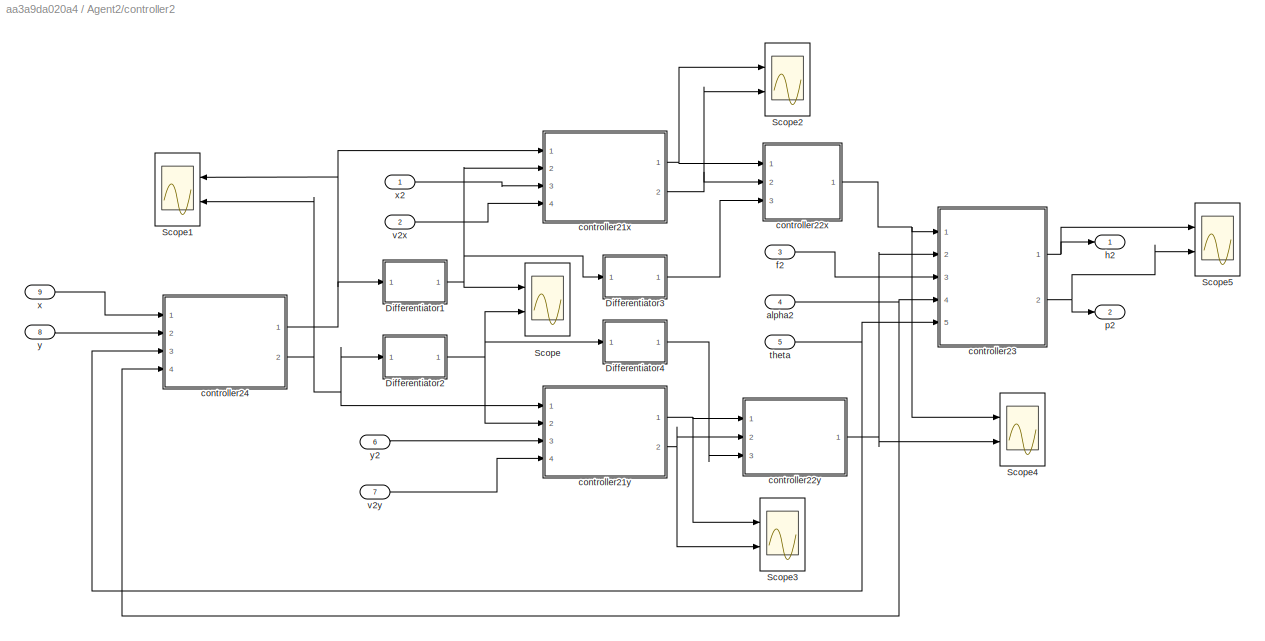
BLOCK [SubSystem] Agent2/controller2
  Ports = [9, 2]
  RequestExecContextInheritance = off
BLOCK [SubSystem] Agent2/controller2/Differentiator1
  Ports = [1, 1]
  RequestExecContextInheritance = off
BLOCK [Outport] Agent2/controller2/Differentiator1/Dx_d
  IconDisplay = Port number
BLOCK [Integrator] Agent2/controller2/Differentiator1/Integrator
  InitialCondition = 1
  Ports = [1, 1]
BLOCK [Integrator] Agent2/controller2/Differentiator1/Integrator1
  InitialCondition = 1
  Ports = [1, 1]
BLOCK [SubSystem] Agent2/controller2/Differentiator1/Sliding differentiator
  ErrorFcn = Stateflow.Translate.translate
  PermitHierarchicalResolution = ExplicitOnly
  Ports = [2, 1]
  RequestExecContextInheritance = off
  SFBlockType = MATLAB Function
  TreatAsAtomicUnit = on
BLOCK [Demux] Agent2/controller2/Differentiator1/Sliding differentiator/ Demux 
  Outputs = 1
  Ports = [1, 1]
BLOCK [S-Function] Agent2/controller2/Differentiator1/Sliding differentiator/ SFunction 
  EnableBusSupport = on
  FunctionName = sf_sfun
  PortCounts = [2 2]
  Ports = [2, 2]
  SFcnIsStateOwnerBlock = off
  SFunctionDeploymentMode = off
  Tag = Stateflow S-Function Simple_2Quad_payload_03 17
BLOCK [Terminator] Agent2/controller2/Differentiator1/Sliding differentiator/ Terminator 
BLOCK [Inport] Agent2/controller2/Differentiator1/Sliding differentiator/e
  IconDisplay = Port number
  Port = 2
BLOCK [Outport] Agent2/controller2/Differentiator1/Sliding differentiator/u
  IconDisplay = Port number
BLOCK [Inport] Agent2/controller2/Differentiator1/Sliding differentiator/u1
  IconDisplay = Port number
BLOCK [SubSystem] Agent2/controller2/Differentiator1/Sliding differentiator1
  ErrorFcn = Stateflow.Translate.translate
  PermitHierarchicalResolution = ExplicitOnly
  Ports = [1, 1]
  RequestExecContextInheritance = off
  SFBlockType = MATLAB Function
  TreatAsAtomicUnit = on
BLOCK [Demux] Agent2/controller2/Differentiator1/Sliding differentiator1/ Demux 
  Outputs = 1
  Ports = [1, 1]
BLOCK [S-Function] Agent2/controller2/Differentiator1/Sliding differentiator1/ SFunction 
  EnableBusSupport = on
  FunctionName = sf_sfun
  PortCounts = [1 2]
  Ports = [1, 2]
  SFcnIsStateOwnerBlock = off
  SFunctionDeploymentMode = off
  Tag = Stateflow S-Function Simple_2Quad_payload_03 18
BLOCK [Terminator] Agent2/controller2/Differentiator1/Sliding differentiator1/ Terminator 
BLOCK [Outport] Agent2/controller2/Differentiator1/Sliding differentiator1/Du1
  IconDisplay = Port number
BLOCK [Inport] Agent2/controller2/Differentiator1/Sliding differentiator1/e
  IconDisplay = Port number
BLOCK [Sum] Agent2/controller2/Differentiator1/Sum
  IconShape = round
  InputSameDT = off
  Inputs = |-+
  OutDataTypeStr = Inherit: Inherit via internal rule
  Ports = [2, 1]
  SaturateOnIntegerOverflow = off
BLOCK [Inport] Agent2/controller2/Differentiator1/x_d
  IconDisplay = Port number
BLOCK [SubSystem] Agent2/controller2/Differentiator2
  Ports = [1, 1]
  RequestExecContextInheritance = off
BLOCK [Outport] Agent2/controller2/Differentiator2/Dx_d
  IconDisplay = Port number
BLOCK [Integrator] Agent2/controller2/Differentiator2/Integrator
  InitialCondition = 1
  Ports = [1, 1]
BLOCK [Integrator] Agent2/controller2/Differentiator2/Integrator1
  InitialCondition = 1
  Ports = [1, 1]
BLOCK [SubSystem] Agent2/controller2/Differentiator2/Sliding differentiator
  ErrorFcn = Stateflow.Translate.translate
  PermitHierarchicalResolution = ExplicitOnly
  Ports = [2, 1]
  RequestExecContextInheritance = off
  SFBlockType = MATLAB Function
  TreatAsAtomicUnit = on
BLOCK [Demux] Agent2/controller2/Differentiator2/Sliding differentiator/ Demux 
  Outputs = 1
  Ports = [1, 1]
BLOCK [S-Function] Agent2/controller2/Differentiator2/Sliding differentiator/ SFunction 
  EnableBusSupport = on
  FunctionName = sf_sfun
  PortCounts = [2 2]
  Ports = [2, 2]
  SFcnIsStateOwnerBlock = off
  SFunctionDeploymentMode = off
  Tag = Stateflow S-Function Simple_2Quad_payload_03 19
BLOCK [Terminator] Agent2/controller2/Differentiator2/Sliding differentiator/ Terminator 
BLOCK [Inport] Agent2/controller2/Differentiator2/Sliding differentiator/e
  IconDisplay = Port number
  Port = 2
BLOCK [Outport] Agent2/controller2/Differentiator2/Sliding differentiator/u
  IconDisplay = Port number
BLOCK [Inport] Agent2/controller2/Differentiator2/Sliding differentiator/u1
  IconDisplay = Port number
BLOCK [SubSystem] Agent2/controller2/Differentiator2/Sliding differentiator1
  ErrorFcn = Stateflow.Translate.translate
  PermitHierarchicalResolution = ExplicitOnly
  Ports = [1, 1]
  RequestExecContextInheritance = off
  SFBlockType = MATLAB Function
  TreatAsAtomicUnit = on
BLOCK [Demux] Agent2/controller2/Differentiator2/Sliding differentiator1/ Demux 
  Outputs = 1
  Ports = [1, 1]
BLOCK [S-Function] Agent2/controller2/Differentiator2/Sliding differentiator1/ SFunction 
  EnableBusSupport = on
  FunctionName = sf_sfun
  PortCounts = [1 2]
  Ports = [1, 2]
  SFcnIsStateOwnerBlock = off
  SFunctionDeploymentMode = off
  Tag = Stateflow S-Function Simple_2Quad_payload_03 20
BLOCK [Terminator] Agent2/controller2/Differentiator2/Sliding differentiator1/ Terminator 
BLOCK [Outport] Agent2/controller2/Differentiator2/Sliding differentiator1/Du1
  IconDisplay = Port number
BLOCK [Inport] Agent2/controller2/Differentiator2/Sliding differentiator1/e
  IconDisplay = Port number
BLOCK [Sum] Agent2/controller2/Differentiator2/Sum
  IconShape = round
  InputSameDT = off
  Inputs = |-+
  OutDataTypeStr = Inherit: Inherit via internal rule
  Ports = [2, 1]
  SaturateOnIntegerOverflow = off
BLOCK [Inport] Agent2/controller2/Differentiator2/x_d
  IconDisplay = Port number
BLOCK [SubSystem] Agent2/controller2/Differentiator3
  Ports = [1, 1]
  RequestExecContextInheritance = off
BLOCK [Outport] Agent2/controller2/Differentiator3/Dx_d
  IconDisplay = Port number
BLOCK [Integrator] Agent2/controller2/Differentiator3/Integrator
  InitialCondition = 1
  Ports = [1, 1]
BLOCK [Integrator] Agent2/controller2/Differentiator3/Integrator1
  InitialCondition = 1
  Ports = [1, 1]
BLOCK [SubSystem] Agent2/controller2/Differentiator3/Sliding differentiator
  ErrorFcn = Stateflow.Translate.translate
  PermitHierarchicalResolution = ExplicitOnly
  Ports = [2, 1]
  RequestExecContextInheritance = off
  SFBlockType = MATLAB Function
  TreatAsAtomicUnit = on
BLOCK [Demux] Agent2/controller2/Differentiator3/Sliding differentiator/ Demux 
  Outputs = 1
  Ports = [1, 1]
BLOCK [S-Function] Agent2/controller2/Differentiator3/Sliding differentiator/ SFunction 
  EnableBusSupport = on
  FunctionName = sf_sfun
  PortCounts = [2 2]
  Ports = [2, 2]
  SFcnIsStateOwnerBlock = off
  SFunctionDeploymentMode = off
  Tag = Stateflow S-Function Simple_2Quad_payload_03 21
BLOCK [Terminator] Agent2/controller2/Differentiator3/Sliding differentiator/ Terminator 
BLOCK [Inport] Agent2/controller2/Differentiator3/Sliding differentiator/e
  IconDisplay = Port number
  Port = 2
BLOCK [Outport] Agent2/controller2/Differentiator3/Sliding differentiator/u
  IconDisplay = Port number
BLOCK [Inport] Agent2/controller2/Differentiator3/Sliding differentiator/u1
  IconDisplay = Port number
BLOCK [SubSystem] Agent2/controller2/Differentiator3/Sliding differentiator1
  ErrorFcn = Stateflow.Translate.translate
  PermitHierarchicalResolution = ExplicitOnly
  Ports = [1, 1]
  RequestExecContextInheritance = off
  SFBlockType = MATLAB Function
  TreatAsAtomicUnit = on
BLOCK [Demux] Agent2/controller2/Differentiator3/Sliding differentiator1/ Demux 
  Outputs = 1
  Ports = [1, 1]
BLOCK [S-Function] Agent2/controller2/Differentiator3/Sliding differentiator1/ SFunction 
  EnableBusSupport = on
  FunctionName = sf_sfun
  PortCounts = [1 2]
  Ports = [1, 2]
  SFcnIsStateOwnerBlock = off
  SFunctionDeploymentMode = off
  Tag = Stateflow S-Function Simple_2Quad_payload_03 22
BLOCK [Terminator] Agent2/controller2/Differentiator3/Sliding differentiator1/ Terminator 
BLOCK [Outport] Agent2/controller2/Differentiator3/Sliding differentiator1/Du1
  IconDisplay = Port number
BLOCK [Inport] Agent2/controller2/Differentiator3/Sliding differentiator1/e
  IconDisplay = Port number
BLOCK [Sum] Agent2/controller2/Differentiator3/Sum
  IconShape = round
  InputSameDT = off
  Inputs = |-+
  OutDataTypeStr = Inherit: Inherit via internal rule
  Ports = [2, 1]
  SaturateOnIntegerOverflow = off
BLOCK [Inport] Agent2/controller2/Differentiator3/x_d
  IconDisplay = Port number
BLOCK [SubSystem] Agent2/controller2/Differentiator4
  Ports = [1, 1]
  RequestExecContextInheritance = off
BLOCK [Outport] Agent2/controller2/Differentiator4/Dx_d
  IconDisplay = Port number
BLOCK [Integrator] Agent2/controller2/Differentiator4/Integrator
  InitialCondition = 1
  Ports = [1, 1]
BLOCK [Integrator] Agent2/controller2/Differentiator4/Integrator1
  InitialCondition = 1
  Ports = [1, 1]
BLOCK [SubSystem] Agent2/controller2/Differentiator4/Sliding differentiator
  ErrorFcn = Stateflow.Translate.translate
  PermitHierarchicalResolution = ExplicitOnly
  Ports = [2, 1]
  RequestExecContextInheritance = off
  SFBlockType = MATLAB Function
  TreatAsAtomicUnit = on
BLOCK [Demux] Agent2/controller2/Differentiator4/Sliding differentiator/ Demux 
  Outputs = 1
  Ports = [1, 1]
BLOCK [S-Function] Agent2/controller2/Differentiator4/Sliding differentiator/ SFunction 
  EnableBusSupport = on
  FunctionName = sf_sfun
  PortCounts = [2 2]
  Ports = [2, 2]
  SFcnIsStateOwnerBlock = off
  SFunctionDeploymentMode = off
  Tag = Stateflow S-Function Simple_2Quad_payload_03 23
BLOCK [Terminator] Agent2/controller2/Differentiator4/Sliding differentiator/ Terminator 
BLOCK [Inport] Agent2/controller2/Differentiator4/Sliding differentiator/e
  IconDisplay = Port number
  Port = 2
BLOCK [Outport] Agent2/controller2/Differentiator4/Sliding differentiator/u
  IconDisplay = Port number
BLOCK [Inport] Agent2/controller2/Differentiator4/Sliding differentiator/u1
  IconDisplay = Port number
BLOCK [SubSystem] Agent2/controller2/Differentiator4/Sliding differentiator1
  ErrorFcn = Stateflow.Translate.translate
  PermitHierarchicalResolution = ExplicitOnly
  Ports = [1, 1]
  RequestExecContextInheritance = off
  SFBlockType = MATLAB Function
  TreatAsAtomicUnit = on
BLOCK [Demux] Agent2/controller2/Differentiator4/Sliding differentiator1/ Demux 
  Outputs = 1
  Ports = [1, 1]
BLOCK [S-Function] Agent2/controller2/Differentiator4/Sliding differentiator1/ SFunction 
  EnableBusSupport = on
  FunctionName = sf_sfun
  PortCounts = [1 2]
  Ports = [1, 2]
  SFcnIsStateOwnerBlock = off
  SFunctionDeploymentMode = off
  Tag = Stateflow S-Function Simple_2Quad_payload_03 24
BLOCK [Terminator] Agent2/controller2/Differentiator4/Sliding differentiator1/ Terminator 
BLOCK [Outport] Agent2/controller2/Differentiator4/Sliding differentiator1/Du1
  IconDisplay = Port number
BLOCK [Inport] Agent2/controller2/Differentiator4/Sliding differentiator1/e
  IconDisplay = Port number
BLOCK [Sum] Agent2/controller2/Differentiator4/Sum
  IconShape = round
  InputSameDT = off
  Inputs = |-+
  OutDataTypeStr = Inherit: Inherit via internal rule
  Ports = [2, 1]
  SaturateOnIntegerOverflow = off
BLOCK [Inport] Agent2/controller2/Differentiator4/x_d
  IconDisplay = Port number
BLOCK [Scope] Agent2/controller2/Scope
  Floating = off
  NumInputPorts = 2
  Ports = [2]
  ScopeSpecificationString = Simulink.scopes.TimeScopeBlockCfg('CurrentConfiguration', extmgr.ConfigurationSet(extmgr.Configuration('Core','General UI',true),extmgr.Configuration('Core','Source UI',true),extmgr.Configuration('Sources','WiredSimulink',true,'DataLoggingVariableName','ScopeData5'),extmgr.Configuration('Visuals','Time Domain',true,'SerializedDisplays',{struct('MinYLimReal','-0.49612','MaxYLimReal','0.30735','YLab...<+2000ch>
BLOCK [Scope] Agent2/controller2/Scope1
  Floating = off
  NumInputPorts = 2
  Ports = [2]
  ScopeSpecificationString = Simulink.scopes.TimeScopeBlockCfg('CurrentConfiguration', extmgr.ConfigurationSet(extmgr.Configuration('Core','General UI',true),extmgr.Configuration('Core','Source UI',true),extmgr.Configuration('Sources','WiredSimulink',true,'DataLoggingVariableName','ScopeData6'),extmgr.Configuration('Visuals','Time Domain',true,'SerializedDisplays',{struct('MinYLimReal','-0.42768','MaxYLimReal','0.92018','YLab...<+2003ch>
BLOCK [Scope] Agent2/controller2/Scope2
  Floating = off
  NumInputPorts = 2
  Ports = [2]
  ScopeSpecificationString = Simulink.scopes.TimeScopeBlockCfg('CurrentConfiguration', extmgr.ConfigurationSet(extmgr.Configuration('Core','General UI',true),extmgr.Configuration('Core','Source UI',true),extmgr.Configuration('Sources','WiredSimulink',true,'DataLoggingVariableName','ScopeData7'),extmgr.Configuration('Visuals','Time Domain',true,'SerializedDisplays',{struct('MinYLimReal','0.38061','MaxYLimReal','0.81451','YLabe...<+2032ch>
BLOCK [Scope] Agent2/controller2/Scope3
  Floating = off
  NumInputPorts = 2
  Ports = [2]
  ScopeSpecificationString = Simulink.scopes.TimeScopeBlockCfg('CurrentConfiguration', extmgr.ConfigurationSet(extmgr.Configuration('Core','General UI',true),extmgr.Configuration('Core','Source UI',true),extmgr.Configuration('Sources','WiredSimulink',true,'DataLoggingVariableName','ScopeData8'),extmgr.Configuration('Visuals','Time Domain',true,'SerializedDisplays',{struct('MinYLimReal','-0.3562','MaxYLimReal','0.01194','YLabe...<+2008ch>
BLOCK [Scope] Agent2/controller2/Scope4
  Floating = off
  NumInputPorts = 2
  Ports = [2]
  ScopeSpecificationString = Simulink.scopes.TimeScopeBlockCfg('CurrentConfiguration', extmgr.ConfigurationSet(extmgr.Configuration('Core','General UI',true),extmgr.Configuration('Core','Source UI',true),extmgr.Configuration('Sources','WiredSimulink',true,'DataLoggingVariableName','ScopeData9'),extmgr.Configuration('Visuals','Time Domain',true,'SerializedDisplays',{struct('MinYLimReal','-29.84422','MaxYLimReal','4.68601','YLa...<+2026ch>
BLOCK [Scope] Agent2/controller2/Scope5
  Floating = off
  NumInputPorts = 2
  Ports = [2]
  ScopeSpecificationString = Simulink.scopes.TimeScopeBlockCfg('CurrentConfiguration', extmgr.ConfigurationSet(extmgr.Configuration('Core','General UI',true),extmgr.Configuration('Core','Source UI',true),extmgr.Configuration('Sources','WiredSimulink',true,'DataLoggingVariableName','ScopeData10'),extmgr.Configuration('Visuals','Time Domain',true,'SerializedDisplays',{struct('MinYLimReal','-458052674.48413','MaxYLimReal','41224...<+2077ch>
BLOCK [Inport] Agent2/controller2/alpha2
  IconDisplay = Port number
  Port = 4
BLOCK [SubSystem] Agent2/controller2/controller21x
  ErrorFcn = Stateflow.Translate.translate
  PermitHierarchicalResolution = ExplicitOnly
  Ports = [4, 2]
  RequestExecContextInheritance = off
  SFBlockType = MATLAB Function
  TreatAsAtomicUnit = on
BLOCK [Demux] Agent2/controller2/controller21x/ Demux 
  Outputs = 1
  Ports = [1, 1]
BLOCK [S-Function] Agent2/controller2/controller21x/ SFunction 
  EnableBusSupport = on
  FunctionName = sf_sfun
  PortCounts = [4 3]
  Ports = [4, 3]
  SFcnIsStateOwnerBlock = off
  SFunctionDeploymentMode = off
  Tag = Stateflow S-Function Simple_2Quad_payload_03 7
BLOCK [Terminator] Agent2/controller2/controller21x/ Terminator 
BLOCK [Outport] Agent2/controller2/controller21x/e21x
  IconDisplay = Port number
BLOCK [Outport] Agent2/controller2/controller21x/e22x
  IconDisplay = Port number
  Port = 2
BLOCK [Inport] Agent2/controller2/controller21x/v2dx
  IconDisplay = Port number
  Port = 2
BLOCK [Inport] Agent2/controller2/controller21x/v2x
  IconDisplay = Port number
  Port = 4
BLOCK [Inport] Agent2/controller2/controller21x/x2
  IconDisplay = Port number
  Port = 3
BLOCK [Inport] Agent2/controller2/controller21x/x2d
  IconDisplay = Port number
BLOCK [SubSystem] Agent2/controller2/controller21y
  ErrorFcn = Stateflow.Translate.translate
  PermitHierarchicalResolution = ExplicitOnly
  Ports = [4, 2]
  RequestExecContextInheritance = off
  SFBlockType = MATLAB Function
  TreatAsAtomicUnit = on
BLOCK [Demux] Agent2/controller2/controller21y/ Demux 
  Outputs = 1
  Ports = [1, 1]
BLOCK [S-Function] Agent2/controller2/controller21y/ SFunction 
  EnableBusSupport = on
  FunctionName = sf_sfun
  PortCounts = [4 3]
  Ports = [4, 3]
  SFcnIsStateOwnerBlock = off
  SFunctionDeploymentMode = off
  Tag = Stateflow S-Function Simple_2Quad_payload_03 12
BLOCK [Terminator] Agent2/controller2/controller21y/ Terminator 
BLOCK [Outport] Agent2/controller2/controller21y/e21y
  IconDisplay = Port number
BLOCK [Outport] Agent2/controller2/controller21y/e22y
  IconDisplay = Port number
  Port = 2
BLOCK [Inport] Agent2/controller2/controller21y/v2dy
  IconDisplay = Port number
  Port = 2
BLOCK [Inport] Agent2/controller2/controller21y/v2y
  IconDisplay = Port number
  Port = 4
BLOCK [Inport] Agent2/controller2/controller21y/y2
  IconDisplay = Port number
  Port = 3
BLOCK [Inport] Agent2/controller2/controller21y/y2d
  IconDisplay = Port number
BLOCK [SubSystem] Agent2/controller2/controller22x
  ErrorFcn = Stateflow.Translate.translate
  PermitHierarchicalResolution = ExplicitOnly
  Ports = [3, 1]
  RequestExecContextInheritance = off
  SFBlockType = MATLAB Function
  TreatAsAtomicUnit = on
BLOCK [Demux] Agent2/controller2/controller22x/ Demux 
  Outputs = 1
  Ports = [1, 1]
BLOCK [S-Function] Agent2/controller2/controller22x/ SFunction 
  EnableBusSupport = on
  FunctionName = sf_sfun
  PortCounts = [3 2]
  Ports = [3, 2]
  SFcnIsStateOwnerBlock = off
  SFunctionDeploymentMode = off
  Tag = Stateflow S-Function Simple_2Quad_payload_03 6
BLOCK [Terminator] Agent2/controller2/controller22x/ Terminator 
BLOCK [Inport] Agent2/controller2/controller22x/DDxd
  IconDisplay = Port number
  Port = 3
BLOCK [Outport] Agent2/controller2/controller22x/F2x
  IconDisplay = Port number
BLOCK [Inport] Agent2/controller2/controller22x/e21x
  IconDisplay = Port number
BLOCK [Inport] Agent2/controller2/controller22x/e22x
  IconDisplay = Port number
  Port = 2
BLOCK [SubSystem] Agent2/controller2/controller22y
  ErrorFcn = Stateflow.Translate.translate
  PermitHierarchicalResolution = ExplicitOnly
  Ports = [3, 1]
  RequestExecContextInheritance = off
  SFBlockType = MATLAB Function
  TreatAsAtomicUnit = on
BLOCK [Demux] Agent2/controller2/controller22y/ Demux 
  Outputs = 1
  Ports = [1, 1]
BLOCK [S-Function] Agent2/controller2/controller22y/ SFunction 
  EnableBusSupport = on
  FunctionName = sf_sfun
  PortCounts = [3 2]
  Ports = [3, 2]
  SFcnIsStateOwnerBlock = off
  SFunctionDeploymentMode = off
  Tag = Stateflow S-Function Simple_2Quad_payload_03 13
BLOCK [Terminator] Agent2/controller2/controller22y/ Terminator 
BLOCK [Inport] Agent2/controller2/controller22y/DDyd
  IconDisplay = Port number
  Port = 3
BLOCK [Outport] Agent2/controller2/controller22y/F2y
  IconDisplay = Port number
BLOCK [Inport] Agent2/controller2/controller22y/e21y
  IconDisplay = Port number
BLOCK [Inport] Agent2/controller2/controller22y/e22y
  IconDisplay = Port number
  Port = 2
BLOCK [SubSystem] Agent2/controller2/controller23
  ErrorFcn = Stateflow.Translate.translate
  PermitHierarchicalResolution = ExplicitOnly
  Ports = [5, 2]
  RequestExecContextInheritance = off
  SFBlockType = MATLAB Function
  TreatAsAtomicUnit = on
BLOCK [Demux] Agent2/controller2/controller23/ Demux 
  Outputs = 1
  Ports = [1, 1]
BLOCK [S-Function] Agent2/controller2/controller23/ SFunction 
  EnableBusSupport = on
  FunctionName = sf_sfun
  Parameters = g,m2
  PortCounts = [5 3]
  Ports = [5, 3]
  SFcnIsStateOwnerBlock = off
  SFunctionDeploymentMode = off
  Tag = Stateflow S-Function Simple_2Quad_payload_03 8
BLOCK [Terminator] Agent2/controller2/controller23/ Terminator 
BLOCK [Inport] Agent2/controller2/controller23/F2x
  IconDisplay = Port number
BLOCK [Inport] Agent2/controller2/controller23/F2y
  IconDisplay = Port number
  Port = 2
BLOCK [Inport] Agent2/controller2/controller23/alpha2
  IconDisplay = Port number
  Port = 4
BLOCK [Inport] Agent2/controller2/controller23/f2
  IconDisplay = Port number
  Port = 3
BLOCK [Outport] Agent2/controller2/controller23/h2
  IconDisplay = Port number
BLOCK [Outport] Agent2/controller2/controller23/p2
  IconDisplay = Port number
  Port = 2
BLOCK [Inport] Agent2/controller2/controller23/theta
  IconDisplay = Port number
  Port = 5
BLOCK [SubSystem] Agent2/controller2/controller24
  ErrorFcn = Stateflow.Translate.translate
  PermitHierarchicalResolution = ExplicitOnly
  Ports = [4, 2]
  RequestExecContextInheritance = off
  SFBlockType = MATLAB Function
  TreatAsAtomicUnit = on
BLOCK [Demux] Agent2/controller2/controller24/ Demux 
  Outputs = 1
  Ports = [1, 1]
BLOCK [S-Function] Agent2/controller2/controller24/ SFunction 
  EnableBusSupport = on
  FunctionName = sf_sfun
  Parameters = d,l2
  PortCounts = [4 3]
  Ports = [4, 3]
  SFcnIsStateOwnerBlock = off
  SFunctionDeploymentMode = off
  Tag = Stateflow S-Function Simple_2Quad_payload_03 14
BLOCK [Terminator] Agent2/controller2/controller24/ Terminator 
BLOCK [Inport] Agent2/controller2/controller24/alpha2
  IconDisplay = Port number
  Port = 4
BLOCK [Inport] Agent2/controller2/controller24/theta
  IconDisplay = Port number
  Port = 3
BLOCK [Inport] Agent2/controller2/controller24/x
  IconDisplay = Port number
BLOCK [Outport] Agent2/controller2/controller24/x2d
  IconDisplay = Port number
BLOCK [Inport] Agent2/controller2/controller24/y
  IconDisplay = Port number
  Port = 2
BLOCK [Outport] Agent2/controller2/controller24/y2d
  IconDisplay = Port number
  Port = 2
BLOCK [Inport] Agent2/controller2/f2
  IconDisplay = Port number
  Port = 3
BLOCK [Outport] Agent2/controller2/h2
  IconDisplay = Port number
BLOCK [Outport] Agent2/controller2/p2
  IconDisplay = Port number
  Port = 2
BLOCK [Inport] Agent2/controller2/theta
  IconDisplay = Port number
  Port = 5
BLOCK [Inport] Agent2/controller2/v2x
  IconDisplay = Port number
  Port = 2
BLOCK [Inport] Agent2/controller2/v2y
  IconDisplay = Port number
  Port = 7
BLOCK [Inport] Agent2/controller2/x
  IconDisplay = Port number
  Port = 9
BLOCK [Inport] Agent2/controller2/x2
  IconDisplay = Port number
BLOCK [Inport] Agent2/controller2/y
  IconDisplay = Port number
  Port = 8
BLOCK [Inport] Agent2/controller2/y2
  IconDisplay = Port number
  Port = 6
BLOCK [Inport] Agent2/f2
  IconDisplay = Port number
BLOCK [Inport] Agent2/theta
  IconDisplay = Port number
  Port = 5
BLOCK [Inport] Agent2/x
  IconDisplay = Port number
  Port = 2
BLOCK [Inport] Agent2/y
  IconDisplay = Port number
  Port = 3
BLOCK [Constant] Constant
  Value = 2
BLOCK [Scope] Scope
  Floating = off
  NumInputPorts = 3
  Ports = [3]
  ScopeSpecificationString = Simulink.scopes.TimeScopeBlockCfg('CurrentConfiguration', extmgr.ConfigurationSet(extmgr.Configuration('Core','General UI',true),extmgr.Configuration('Core','Source UI',true),extmgr.Configuration('Sources','WiredSimulink',true),extmgr.Configuration('Visuals','Time Domain',true,'SerializedDisplays',{struct('MinYLimReal','-0.09817','MaxYLimReal','0.88357','YLabelReal','','MinYLimMag','0.00000','MaxY...<+2673ch>
BLOCK [Scope] Scope2
  Floating = off
  NumInputPorts = 2
  Ports = [2]
  ScopeSpecificationString = Simulink.scopes.TimeScopeBlockCfg('CurrentConfiguration', extmgr.ConfigurationSet(extmgr.Configuration('Core','General UI',true),extmgr.Configuration('Core','Source UI',true),extmgr.Configuration('Sources','WiredSimulink',true,'DataLoggingVariableName','ScopeData16'),extmgr.Configuration('Visuals','Time Domain',true,'SerializedDisplays',{struct('MinYLimReal','52.20098','MaxYLimReal','61.18109','YL...<+2021ch>
BLOCK [SubSystem] payload
  Ports = [3, 7]
  RequestExecContextInheritance = off
BLOCK [Inport] payload/Desired_velocity
  IconDisplay = Port number
BLOCK [Integrator] payload/Integrator1
  Ports = [1, 1]
BLOCK [Integrator] payload/Integrator2
  Ports = [1, 1]
BLOCK [Integrator] payload/Integrator3
  InitialCondition = 9
  Ports = [1, 1]
BLOCK [Integrator] payload/Integrator4
  Ports = [1, 1]
BLOCK [Integrator] payload/Integrator5
  Ports = [1, 1]
BLOCK [Integrator] payload/Integrator6
  Ports = [1, 1]
BLOCK [Scope] payload/Scope
  Floating = off
  NumInputPorts = 3
  Ports = [3]
  ScopeSpecificationString = Simulink.scopes.TimeScopeBlockCfg('CurrentConfiguration', extmgr.ConfigurationSet(extmgr.Configuration('Core','General UI',true),extmgr.Configuration('Core','Source UI',true),extmgr.Configuration('Sources','WiredSimulink',true,'DataLoggingVariableName','ScopeData11'),extmgr.Configuration('Visuals','Time Domain',true,'SerializedDisplays',{struct('MinYLimReal','-1.26607','MaxYLimReal','11.39461','YL...<+2724ch>
BLOCK [Scope] payload/Scope1
  Floating = off
  NumInputPorts = 2
  Ports = [2]
  ScopeSpecificationString = Simulink.scopes.TimeScopeBlockCfg('CurrentConfiguration', extmgr.ConfigurationSet(extmgr.Configuration('Core','General UI',true),extmgr.Configuration('Core','Source UI',true),extmgr.Configuration('Sources','WiredSimulink',true,'DataLoggingVariableName','ScopeData12'),extmgr.Configuration('Visuals','Time Domain',true,'SerializedDisplays',{struct('MinYLimReal','1.4162','MaxYLimReal','2.53197','YLabe...<+2013ch>
BLOCK [Scope] payload/Scope2
  Floating = off
  NumInputPorts = 2
  Ports = [2]
  ScopeSpecificationString = Simulink.scopes.TimeScopeBlockCfg('CurrentConfiguration', extmgr.ConfigurationSet(extmgr.Configuration('Core','General UI',true),extmgr.Configuration('Core','Source UI',true),extmgr.Configuration('Sources','WiredSimulink',true,'DataLoggingVariableName','ScopeData13'),extmgr.Configuration('Visuals','Time Domain',true,'SerializedDisplays',{struct('MinYLimReal','-7470794622.78624','MaxYLimReal','8300...<+2072ch>
BLOCK [Scope] payload/Scope3
  Floating = off
  NumInputPorts = 2
  Ports = [2]
  ScopeSpecificationString = Simulink.scopes.TimeScopeBlockCfg('CurrentConfiguration', extmgr.ConfigurationSet(extmgr.Configuration('Core','General UI',true),extmgr.Configuration('Core','Source UI',true),extmgr.Configuration('Sources','WiredSimulink',true,'DataLoggingVariableName','ScopeData15'),extmgr.Configuration('Visuals','Time Domain',true,'SerializedDisplays',{struct('MinYLimReal','4.9049','MaxYLimReal','4.90594','YLabe...<+2021ch>
BLOCK [Inport] payload/alpha1_act
  IconDisplay = Port number
  Port = 2
BLOCK [Outport] payload/alpha1_des
  IconDisplay = Port number
  Port = 7
BLOCK [Inport] payload/alpha2_act
  IconDisplay = Port number
  Port = 3
BLOCK [Outport] payload/alpha2_des
  IconDisplay = Port number
  Port = 6
BLOCK [SubSystem] payload/controller0
  Ports = [5, 4]
  RequestExecContextInheritance = off
BLOCK [Constant] payload/controller0/Constant
  Value = 0
BLOCK [Constant] payload/controller0/Constant1
  Value = g
BLOCK [Inport] payload/controller0/Desired_velocity
  IconDisplay = Port number
  Port = 5
BLOCK [Integrator] payload/controller0/Integrator
  Ports = [1, 1]
BLOCK [Mux] payload/controller0/Mux
  DisplayOption = bar
  Inputs = 3
  Ports = [3, 1]
BLOCK [Mux] payload/controller0/Mux1
  DisplayOption = bar
  Inputs = 3
  Ports = [3, 1]
BLOCK [Sum] payload/controller0/Sum
  IconShape = round
  InputSameDT = off
  Inputs = |+-
  OutDataTypeStr = Inherit: Inherit via internal rule
  Ports = [2, 1]
  SaturateOnIntegerOverflow = off
BLOCK [Outport] payload/controller0/alpha1_des
  IconDisplay = Port number
BLOCK [Outport] payload/controller0/alpha2_des
  IconDisplay = Port number
  Port = 2
BLOCK [SubSystem] payload/controller0/controller01
  ErrorFcn = Stateflow.Translate.translate
  PermitHierarchicalResolution = ExplicitOnly
  Ports = [1, 3]
  RequestExecContextInheritance = off
  SFBlockType = MATLAB Function
  TreatAsAtomicUnit = on
BLOCK [Demux] payload/controller0/controller01/ Demux 
  Outputs = 1
  Ports = [1, 1]
BLOCK [S-Function] payload/controller0/controller01/ SFunction 
  EnableBusSupport = on
  FunctionName = sf_sfun
  Parameters = I,M,d,k21,k22,k31,k32
  PortCounts = [1 4]
  Ports = [1, 4]
  SFcnIsStateOwnerBlock = off
  SFunctionDeploymentMode = off
  Tag = Stateflow S-Function Simple_2Quad_payload_03 10
BLOCK [Terminator] payload/controller0/controller01/ Terminator 
BLOCK [Outport] payload/controller0/controller01/K
  IconDisplay = Port number
  Port = 3
BLOCK [Outport] payload/controller0/controller01/alpha1
  IconDisplay = Port number
BLOCK [Outport] payload/controller0/controller01/alpha2
  IconDisplay = Port number
  Port = 2
BLOCK [Inport] payload/controller0/controller01/theta
  IconDisplay = Port number
BLOCK [SubSystem] payload/controller0/controller02
  ErrorFcn = Stateflow.Translate.translate
  PermitHierarchicalResolution = ExplicitOnly
  Ports = [2, 2]
  RequestExecContextInheritance = off
  SFBlockType = MATLAB Function
  TreatAsAtomicUnit = on
BLOCK [Demux] payload/controller0/controller02/ Demux 
  Outputs = 1
  Ports = [1, 1]
BLOCK [S-Function] payload/controller0/controller02/ SFunction 
  EnableBusSupport = on
  FunctionName = sf_sfun
  Parameters = D_Xd_M
  PortCounts = [2 3]
  Ports = [2, 3]
  SFcnIsStateOwnerBlock = off
  SFunctionDeploymentMode = off
  Tag = Stateflow S-Function Simple_2Quad_payload_03 15
BLOCK [Terminator] payload/controller0/controller02/ Terminator 
BLOCK [Inport] payload/controller0/controller02/K
  IconDisplay = Port number
  Port = 2
BLOCK [Inport] payload/controller0/controller02/e0
  IconDisplay = Port number
BLOCK [Outport] payload/controller0/controller02/f1
  IconDisplay = Port number
BLOCK [Outport] payload/controller0/controller02/f2
  IconDisplay = Port number
  Port = 2
BLOCK [Outport] payload/controller0/f1
  IconDisplay = Port number
  Port = 3
BLOCK [Outport] payload/controller0/f2
  IconDisplay = Port number
  Port = 4
BLOCK [Inport] payload/controller0/theta
  IconDisplay = Port number
BLOCK [Inport] payload/controller0/vx
  IconDisplay = Port number
  Port = 2
BLOCK [Inport] payload/controller0/vy
  IconDisplay = Port number
  Port = 3
BLOCK [Inport] payload/controller0/w
  IconDisplay = Port number
  Port = 4
BLOCK [SubSystem] payload/dynamics0
  ErrorFcn = Stateflow.Translate.translate
  PermitHierarchicalResolution = ExplicitOnly
  Ports = [5, 3]
  RequestExecContextInheritance = off
  SFBlockType = MATLAB Function
  TreatAsAtomicUnit = on
BLOCK [Demux] payload/dynamics0/ Demux 
  Outputs = 1
  Ports = [1, 1]
BLOCK [S-Function] payload/dynamics0/ SFunction 
  EnableBusSupport = on
  FunctionName = sf_sfun
  Parameters = I,M,d,g
  PortCounts = [5 4]
  Ports = [5, 4]
  SFcnIsStateOwnerBlock = off
  SFunctionDeploymentMode = off
  Tag = Stateflow S-Function Simple_2Quad_payload_03 9
BLOCK [Terminator] payload/dynamics0/ Terminator 
BLOCK [Outport] payload/dynamics0/DDtheta
  IconDisplay = Port number
  Port = 3
BLOCK [Outport] payload/dynamics0/DDx
  IconDisplay = Port number
BLOCK [Outport] payload/dynamics0/DDy
  IconDisplay = Port number
  Port = 2
BLOCK [Inport] payload/dynamics0/alpha1
  IconDisplay = Port number
  Port = 3
BLOCK [Inport] payload/dynamics0/alpha2
  IconDisplay = Port number
  Port = 4
BLOCK [Inport] payload/dynamics0/f1
  IconDisplay = Port number
BLOCK [Inport] payload/dynamics0/f2
  IconDisplay = Port number
  Port = 2
BLOCK [Inport] payload/dynamics0/theta
  IconDisplay = Port number
  Port = 5
BLOCK [Outport] payload/f1
  IconDisplay = Port number
  Port = 4
BLOCK [Outport] payload/f2
  IconDisplay = Port number
  Port = 5
BLOCK [Outport] payload/theta
  IconDisplay = Port number
  Port = 3
BLOCK [Outport] payload/x
  IconDisplay = Port number
BLOCK [Outport] payload/y
  IconDisplay = Port number
  Port = 2
LINE Agent1/Dynamics1:1 -> Agent1/Integrator:1
LINE Agent1/Dynamics1:2 -> Agent1/Integrator1:1
NET Agent1/Integrator1:1 -> Agent1/Integrator3:1, Agent1/Scope1:2, Agent1/controller1:6
NET Agent1/Integrator2:1 -> Agent1/Scope:1, Agent1/alpha1_calc:1, Agent1/controller1:1
NET Agent1/Integrator3:1 -> Agent1/Scope:2, Agent1/alpha1_calc:2, Agent1/controller1:5
NET Agent1/Integrator:1 -> Agent1/Integrator2:1, Agent1/Scope1:1, Agent1/controller1:2
NET Agent1/alpha1_calc:1 -> Agent1/Dynamics1:4, Agent1/alpha1_act:1
LINE Agent1/alpha1_des:1 -> Agent1/controller1:8
LINE Agent1/controller1/Ali/CARE:1 -> Agent1/controller1/Ali/Integrator1:1
LINE Agent1/controller1/Ali/Differentiator/Integrator1:1 -> Agent1/controller1/Ali/Differentiator/Sum:2
LINE Agent1/controller1/Ali/Differentiator/Integrator:1 -> Agent1/controller1/Ali/Differentiator/Sliding differentiator:1
LINE Agent1/controller1/Ali/Differentiator/Sliding differentiator1:1 -> Agent1/controller1/Ali/Differentiator/Integrator:1
NET Agent1/controller1/Ali/Differentiator/Sliding differentiator:1 -> Agent1/controller1/Ali/Differentiator/Dx_d:1, Agent1/controller1/Ali/Differentiator/Integrator1:1
NET Agent1/controller1/Ali/Differentiator/Sum:1 -> Agent1/controller1/Ali/Differentiator/Sliding differentiator1:1, Agent1/controller1/Ali/Differentiator/Sliding differentiator:2
LINE Agent1/controller1/Ali/Differentiator/x_d:1 -> Agent1/controller1/Ali/Differentiator/Sum:1
LINE Agent1/controller1/Ali/Differentiator:1 -> Agent1/controller1/Ali/main:3
NET Agent1/controller1/Ali/Integrator1:1 -> Agent1/controller1/Ali/CARE:1, Agent1/controller1/Ali/g-Estimator1:3, Agent1/controller1/Ali/g-Estimator:3, Agent1/controller1/Ali/main:4
NET Agent1/controller1/Ali/Integrator2:1 -> Agent1/controller1/Ali/g-Estimator:2, Agent1/controller1/Ali/main:6
NET Agent1/controller1/Ali/Integrator3:1 -> Agent1/controller1/Ali/Sum:1, Agent1/controller1/Ali/main:2
NET Agent1/controller1/Ali/Integrator:1 -> Agent1/controller1/Ali/CARE:2, Agent1/controller1/Ali/g-Estimator1:4, Agent1/controller1/Ali/main:5
LINE Agent1/controller1/Ali/MATLAB Function:1 -> Agent1/controller1/Ali/u_out:1
LINE Agent1/controller1/Ali/Memory:1 -> Agent1/controller1/Ali/variable change:3
NET Agent1/controller1/Ali/Sum:1 -> Agent1/controller1/Ali/g-Estimator1:1, Agent1/controller1/Ali/g-Estimator:1, Agent1/controller1/Ali/main:1
LINE Agent1/controller1/Ali/g-Estimator1:1 -> Agent1/controller1/Ali/Integrator:1
LINE Agent1/controller1/Ali/g-Estimator:1 -> Agent1/controller1/Ali/Integrator2:1
NET Agent1/controller1/Ali/main:1 -> Agent1/controller1/Ali/MATLAB Function:1, Agent1/controller1/Ali/Memory:1
NET Agent1/controller1/Ali/variable change:1 -> Agent1/controller1/Ali/g-Estimator1:2, Agent1/controller1/Ali/main:7
LINE Agent1/controller1/Ali/variable change:2 -> Agent1/controller1/Ali/Differentiator:1
NET Agent1/controller1/Ali/variable change:3 -> Agent1/controller1/Ali/Integrator3:1, Agent1/controller1/Ali/Sum:2
LINE Agent1/controller1/Ali/x:1 -> Agent1/controller1/Ali/variable change:1
LINE Agent1/controller1/Ali/xd:1 -> Agent1/controller1/Ali/variable change:2
LINE Agent1/controller1/Ali1/CARE:1 -> Agent1/controller1/Ali1/Integrator1:1
LINE Agent1/controller1/Ali1/Differentiator/Integrator1:1 -> Agent1/controller1/Ali1/Differentiator/Sum:2
LINE Agent1/controller1/Ali1/Differentiator/Integrator:1 -> Agent1/controller1/Ali1/Differentiator/Sliding differentiator:1
LINE Agent1/controller1/Ali1/Differentiator/Sliding differentiator1:1 -> Agent1/controller1/Ali1/Differentiator/Integrator:1
NET Agent1/controller1/Ali1/Differentiator/Sliding differentiator:1 -> Agent1/controller1/Ali1/Differentiator/Dx_d:1, Agent1/controller1/Ali1/Differentiator/Integrator1:1
NET Agent1/controller1/Ali1/Differentiator/Sum:1 -> Agent1/controller1/Ali1/Differentiator/Sliding differentiator1:1, Agent1/controller1/Ali1/Differentiator/Sliding differentiator:2
LINE Agent1/controller1/Ali1/Differentiator/x_d:1 -> Agent1/controller1/Ali1/Differentiator/Sum:1
LINE Agent1/controller1/Ali1/Differentiator:1 -> Agent1/controller1/Ali1/main:3
NET Agent1/controller1/Ali1/Integrator1:1 -> Agent1/controller1/Ali1/CARE:1, Agent1/controller1/Ali1/g-Estimator1:3, Agent1/controller1/Ali1/g-Estimator:3, Agent1/controller1/Ali1/main:4
NET Agent1/controller1/Ali1/Integrator2:1 -> Agent1/controller1/Ali1/g-Estimator:2, Agent1/controller1/Ali1/main:6
NET Agent1/controller1/Ali1/Integrator3:1 -> Agent1/controller1/Ali1/Sum:1, Agent1/controller1/Ali1/main:2
NET Agent1/controller1/Ali1/Integrator:1 -> Agent1/controller1/Ali1/CARE:2, Agent1/controller1/Ali1/g-Estimator1:4, Agent1/controller1/Ali1/main:5
LINE Agent1/controller1/Ali1/MATLAB Function:1 -> Agent1/controller1/Ali1/u_out:1
LINE Agent1/controller1/Ali1/Memory:1 -> Agent1/controller1/Ali1/variable change:3
NET Agent1/controller1/Ali1/Sum:1 -> Agent1/controller1/Ali1/g-Estimator1:1, Agent1/controller1/Ali1/g-Estimator:1, Agent1/controller1/Ali1/main:1
LINE Agent1/controller1/Ali1/g-Estimator1:1 -> Agent1/controller1/Ali1/Integrator:1
LINE Agent1/controller1/Ali1/g-Estimator:1 -> Agent1/controller1/Ali1/Integrator2:1
NET Agent1/controller1/Ali1/main:1 -> Agent1/controller1/Ali1/MATLAB Function:1, Agent1/controller1/Ali1/Memory:1
NET Agent1/controller1/Ali1/variable change:1 -> Agent1/controller1/Ali1/g-Estimator1:2, Agent1/controller1/Ali1/main:7
LINE Agent1/controller1/Ali1/variable change:2 -> Agent1/controller1/Ali1/Differentiator:1
NET Agent1/controller1/Ali1/variable change:3 -> Agent1/controller1/Ali1/Integrator3:1, Agent1/controller1/Ali1/Sum:2
LINE Agent1/controller1/Ali1/x:1 -> Agent1/controller1/Ali1/variable change:1
LINE Agent1/controller1/Ali1/xd:1 -> Agent1/controller1/Ali1/variable change:2
NET Agent1/controller1/Ali1:1 -> Agent1/controller1/Scope5:2, Agent1/controller1/p1:1
NET Agent1/controller1/Ali:1 -> Agent1/controller1/Scope5:1, Agent1/controller1/h1:1
LINE Agent1/controller1/MATLAB Function1:1 -> Agent1/controller1/Ali1:1
LINE Agent1/controller1/MATLAB Function:1 -> Agent1/controller1/Ali:1
LINE Agent1/controller1/alpha1:1 -> Agent1/controller1/controller14:4
NET Agent1/controller1/controller14:1 -> Agent1/controller1/Ali:2, Agent1/controller1/Scope1:1
NET Agent1/controller1/controller14:2 -> Agent1/controller1/Ali1:2, Agent1/controller1/Scope1:2
LINE Agent1/controller1/theta:1 -> Agent1/controller1/controller14:3
LINE Agent1/controller1/v1x:1 -> Agent1/controller1/MATLAB Function:2
LINE Agent1/controller1/v1y:1 -> Agent1/controller1/MATLAB Function1:2
LINE Agent1/controller1/x1:1 -> Agent1/controller1/MATLAB Function:1
LINE Agent1/controller1/x:1 -> Agent1/controller1/controller14:1
LINE Agent1/controller1/y1:1 -> Agent1/controller1/MATLAB Function1:1
LINE Agent1/controller1/y:1 -> Agent1/controller1/controller14:2
LINE Agent1/controller1:1 -> Agent1/Dynamics1:1
LINE Agent1/controller1:2 -> Agent1/Dynamics1:2
LINE Agent1/f1:1 -> Agent1/Dynamics1:3
NET Agent1/theta:1 -> Agent1/Dynamics1:5, Agent1/alpha1_calc:3, Agent1/controller1:7
NET Agent1/x:1 -> Agent1/Scope2:1, Agent1/alpha1_calc:4, Agent1/controller1:4
NET Agent1/y:1 -> Agent1/Scope2:2, Agent1/alpha1_calc:5, Agent1/controller1:3
NET Agent1:1 -> Scope2:1, payload:2
LINE Agent2/Dynamics2:1 -> Agent2/Integrator:1
LINE Agent2/Dynamics2:2 -> Agent2/Integrator1:1
NET Agent2/Integrator1:1 -> Agent2/Integrator3:1, Agent2/Scope1:2, Agent2/controller2:7
NET Agent2/Integrator2:1 -> Agent2/Scope:1, Agent2/alpha2_calc:1, Agent2/controller2:1
NET Agent2/Integrator3:1 -> Agent2/Scope:2, Agent2/alpha2_calc:2, Agent2/controller2:6
NET Agent2/Integrator:1 -> Agent2/Integrator2:1, Agent2/Scope1:1, Agent2/controller2:2
NET Agent2/alpha2_calc:1 -> Agent2/Dynamics2:4, Agent2/alpha2_act:1
LINE Agent2/alpha2_des:1 -> Agent2/controller2:4
LINE Agent2/controller2/Differentiator1/Integrator1:1 -> Agent2/controller2/Differentiator1/Sum:2
LINE Agent2/controller2/Differentiator1/Integrator:1 -> Agent2/controller2/Differentiator1/Sliding differentiator:1
LINE Agent2/controller2/Differentiator1/Sliding differentiator1:1 -> Agent2/controller2/Differentiator1/Integrator:1
NET Agent2/controller2/Differentiator1/Sliding differentiator:1 -> Agent2/controller2/Differentiator1/Dx_d:1, Agent2/controller2/Differentiator1/Integrator1:1
NET Agent2/controller2/Differentiator1/Sum:1 -> Agent2/controller2/Differentiator1/Sliding differentiator1:1, Agent2/controller2/Differentiator1/Sliding differentiator:2
LINE Agent2/controller2/Differentiator1/x_d:1 -> Agent2/controller2/Differentiator1/Sum:1
NET Agent2/controller2/Differentiator1:1 -> Agent2/controller2/Differentiator3:1, Agent2/controller2/Scope:1, Agent2/controller2/controller21x:2
LINE Agent2/controller2/Differentiator2/Integrator1:1 -> Agent2/controller2/Differentiator2/Sum:2
LINE Agent2/controller2/Differentiator2/Integrator:1 -> Agent2/controller2/Differentiator2/Sliding differentiator:1
LINE Agent2/controller2/Differentiator2/Sliding differentiator1:1 -> Agent2/controller2/Differentiator2/Integrator:1
NET Agent2/controller2/Differentiator2/Sliding differentiator:1 -> Agent2/controller2/Differentiator2/Dx_d:1, Agent2/controller2/Differentiator2/Integrator1:1
NET Agent2/controller2/Differentiator2/Sum:1 -> Agent2/controller2/Differentiator2/Sliding differentiator1:1, Agent2/controller2/Differentiator2/Sliding differentiator:2
LINE Agent2/controller2/Differentiator2/x_d:1 -> Agent2/controller2/Differentiator2/Sum:1
NET Agent2/controller2/Differentiator2:1 -> Agent2/controller2/Differentiator4:1, Agent2/controller2/Scope:2, Agent2/controller2/controller21y:2
LINE Agent2/controller2/Differentiator3/Integrator1:1 -> Agent2/controller2/Differentiator3/Sum:2
LINE Agent2/controller2/Differentiator3/Integrator:1 -> Agent2/controller2/Differentiator3/Sliding differentiator:1
LINE Agent2/controller2/Differentiator3/Sliding differentiator1:1 -> Agent2/controller2/Differentiator3/Integrator:1
NET Agent2/controller2/Differentiator3/Sliding differentiator:1 -> Agent2/controller2/Differentiator3/Dx_d:1, Agent2/controller2/Differentiator3/Integrator1:1
NET Agent2/controller2/Differentiator3/Sum:1 -> Agent2/controller2/Differentiator3/Sliding differentiator1:1, Agent2/controller2/Differentiator3/Sliding differentiator:2
LINE Agent2/controller2/Differentiator3/x_d:1 -> Agent2/controller2/Differentiator3/Sum:1
LINE Agent2/controller2/Differentiator3:1 -> Agent2/controller2/controller22x:3
LINE Agent2/controller2/Differentiator4/Integrator1:1 -> Agent2/controller2/Differentiator4/Sum:2
LINE Agent2/controller2/Differentiator4/Integrator:1 -> Agent2/controller2/Differentiator4/Sliding differentiator:1
LINE Agent2/controller2/Differentiator4/Sliding differentiator1:1 -> Agent2/controller2/Differentiator4/Integrator:1
NET Agent2/controller2/Differentiator4/Sliding differentiator:1 -> Agent2/controller2/Differentiator4/Dx_d:1, Agent2/controller2/Differentiator4/Integrator1:1
NET Agent2/controller2/Differentiator4/Sum:1 -> Agent2/controller2/Differentiator4/Sliding differentiator1:1, Agent2/controller2/Differentiator4/Sliding differentiator:2
LINE Agent2/controller2/Differentiator4/x_d:1 -> Agent2/controller2/Differentiator4/Sum:1
LINE Agent2/controller2/Differentiator4:1 -> Agent2/controller2/controller22y:3
NET Agent2/controller2/alpha2:1 -> Agent2/controller2/controller23:4, Agent2/controller2/controller24:4
NET Agent2/controller2/controller21x:1 -> Agent2/controller2/Scope2:1, Agent2/controller2/controller22x:1
NET Agent2/controller2/controller21x:2 -> Agent2/controller2/Scope2:2, Agent2/controller2/controller22x:2
NET Agent2/controller2/controller21y:1 -> Agent2/controller2/Scope3:1, Agent2/controller2/controller22y:1
NET Agent2/controller2/controller21y:2 -> Agent2/controller2/Scope3:2, Agent2/controller2/controller22y:2
NET Agent2/controller2/controller22x:1 -> Agent2/controller2/Scope4:1, Agent2/controller2/controller23:1
NET Agent2/controller2/controller22y:1 -> Agent2/controller2/Scope4:2, Agent2/controller2/controller23:2
NET Agent2/controller2/controller23:1 -> Agent2/controller2/Scope5:1, Agent2/controller2/h2:1
NET Agent2/controller2/controller23:2 -> Agent2/controller2/Scope5:2, Agent2/controller2/p2:1
NET Agent2/controller2/controller24:1 -> Agent2/controller2/Differentiator1:1, Agent2/controller2/Scope1:1, Agent2/controller2/controller21x:1
NET Agent2/controller2/controller24:2 -> Agent2/controller2/Differentiator2:1, Agent2/controller2/Scope1:2, Agent2/controller2/controller21y:1
LINE Agent2/controller2/f2:1 -> Agent2/controller2/controller23:3
NET Agent2/controller2/theta:1 -> Agent2/controller2/controller23:5, Agent2/controller2/controller24:3
LINE Agent2/controller2/v2x:1 -> Agent2/controller2/controller21x:4
LINE Agent2/controller2/v2y:1 -> Agent2/controller2/controller21y:4
LINE Agent2/controller2/x2:1 -> Agent2/controller2/controller21x:3
LINE Agent2/controller2/x:1 -> Agent2/controller2/controller24:1
LINE Agent2/controller2/y2:1 -> Agent2/controller2/controller21y:3
LINE Agent2/controller2/y:1 -> Agent2/controller2/controller24:2
LINE Agent2/controller2:1 -> Agent2/Dynamics2:1
LINE Agent2/controller2:2 -> Agent2/Dynamics2:2
NET Agent2/f2:1 -> Agent2/Dynamics2:3, Agent2/controller2:3
NET Agent2/theta:1 -> Agent2/Dynamics2:5, Agent2/alpha2_calc:3, Agent2/controller2:5
NET Agent2/x:1 -> Agent2/alpha2_calc:4, Agent2/controller2:9
NET Agent2/y:1 -> Agent2/alpha2_calc:5, Agent2/controller2:8
NET Agent2:1 -> Scope2:2, payload:3
LINE Constant:1 -> payload:1
LINE payload/Desired_velocity:1 -> payload/controller0:5
NET payload/Integrator1:1 -> payload/controller0:1, payload/x:1
NET payload/Integrator2:1 -> payload/Integrator3:1, payload/Scope:2, payload/controller0:3
LINE payload/Integrator3:1 -> payload/y:1
NET payload/Integrator4:1 -> payload/Integrator5:1, payload/Scope:3, payload/controller0:4
NET payload/Integrator5:1 -> payload/dynamics0:5, payload/theta:1
NET payload/Integrator6:1 -> payload/Integrator1:1, payload/Scope:1, payload/controller0:2
NET payload/alpha1_act:1 -> payload/Scope1:1, payload/dynamics0:3
NET payload/alpha2_act:1 -> payload/Scope1:2, payload/dynamics0:4
LINE payload/controller0/Constant1:1 -> payload/controller0/Integrator:1
LINE payload/controller0/Constant:1 -> payload/controller0/Mux1:1
LINE payload/controller0/Desired_velocity:1 -> payload/controller0/Mux1:2
LINE payload/controller0/Integrator:1 -> payload/controller0/Mux1:3
LINE payload/controller0/Mux1:1 -> payload/controller0/Sum:1
LINE payload/controller0/Mux:1 -> payload/controller0/Sum:2
LINE payload/controller0/Sum:1 -> payload/controller0/controller02:1
LINE payload/controller0/controller01:1 -> payload/controller0/alpha1_des:1
LINE payload/controller0/controller01:2 -> payload/controller0/alpha2_des:1
LINE payload/controller0/controller01:3 -> payload/controller0/controller02:2
LINE payload/controller0/controller02:1 -> payload/controller0/f1:1
LINE payload/controller0/controller02:2 -> payload/controller0/f2:1
LINE payload/controller0/theta:1 -> payload/controller0/controller01:1
LINE payload/controller0/vx:1 -> payload/controller0/Mux:1
LINE payload/controller0/vy:1 -> payload/controller0/Mux:2
LINE payload/controller0/w:1 -> payload/controller0/Mux:3
NET payload/controller0:1 -> payload/Scope3:1, payload/alpha1_des:1
NET payload/controller0:2 -> payload/Scope3:2, payload/alpha2_des:1
NET payload/controller0:3 -> payload/Scope2:1, payload/dynamics0:1, payload/f1:1
NET payload/controller0:4 -> payload/Scope2:2, payload/dynamics0:2, payload/f2:1
LINE payload/dynamics0:1 -> payload/Integrator6:1
LINE payload/dynamics0:2 -> payload/Integrator2:1
LINE payload/dynamics0:3 -> payload/Integrator4:1
NET payload:1 -> Agent1:4, Agent2:2, Scope:1
NET payload:2 -> Agent1:5, Agent2:3, Scope:2
NET payload:3 -> Agent1:3, Agent2:5, Scope:3
LINE payload:4 -> Agent1:2
LINE payload:5 -> Agent2:1
LINE payload:6 -> Agent2:4
LINE payload:7 -> Agent1:1
note: NET lines group one-source signal fan-out (src -> all destinations, sorted); 1:1 wires keep LINE
CHART Agent1/controller1/Ali/CARE states=1 transitions=1
  STATE_LABEL 'eML_blk_kernel()'
  STATE_LABEL "SCRIPT:\nfunction DP = fcn(P,a_hat,B,R,Q)\n\nDP = a_hat*P + P*a_hat' - P*B*R*B'*P + 2*Q;\n\nend\n"
CHART Agent1/Dynamics1 states=1 transitions=1
  STATE_LABEL 'eML_blk_kernel()'
  STATE_LABEL 'SCRIPT:\nfunction [DDx1,DDy1] = fcn(h1,p1,f1,alpha1,theta,g, m1)\n\nDDx1 = (1/m1) * (h1 - f1*cos(alpha1+theta));\nDDy1 = (1/m1) * (p1 - m1*g - f1*sin(alpha1+theta));\n\nend\n'
CHART Agent1/controller1/Ali/Differentiator/Sliding differentiator states=1 transitions=1
  STATE_LABEL 'eML_blk_kernel()'
  STATE_LABEL 'SCRIPT:\nfunction u = fcn(u1,e,n,k1)\n\nb=k1;\n\nABS = zeros(n,1);\nfor i=1:n\n    if e(i)>0\n        ABS(i) = e(i);\n    else\n        ABS(i) = -e(i);\n    end\nend\nSGN = e ./ (ABS + 0.01);\n\nu = u1 - b*(ABS.^0.5).*SGN;\n\nend\n'
CHART Agent1/controller1/Ali/Differentiator/Sliding differentiator1 states=1 transitions=1
  STATE_LABEL 'eML_blk_kernel()'
  STATE_LABEL 'SCRIPT:\nfunction Du1 = fcn(e,n,k2)\n\na=k2;\n\nABS = zeros(n,1);\nfor i=1:n\n    if e(i)>0\n        ABS(i) = e(i);\n    else\n        ABS(i) = -e(i);\n    end\nend\nSGN = e ./ (ABS + 0.01);\n\nDu1 = - a*SGN;\n\nend\n'
CHART Agent2/Dynamics2 states=1 transitions=1
  STATE_LABEL 'eML_blk_kernel()'
  STATE_LABEL 'SCRIPT:\nfunction [DDx2,DDy2] = fcn(h2,p2,f2,alpha2,theta,g, m2)\n\nDDx2 = (1/m2) * (h2 - f2*cos(alpha2+theta));\nDDy2 = (1/m2) * (p2 - m2*g - f2*sin(alpha2+theta));\n\nend\n'
CHART Agent2/controller2/controller22x states=1 transitions=1
  STATE_LABEL 'eML_blk_kernel()'
  STATE_LABEL 'SCRIPT:\nfunction F2x = fcn(e21x,e22x,DDxd)\n\nk21x = 1;\nk22x = 1;\n\nF2x = DDxd + k21x*e21x + k22x*e22x;\n\nend\n'
CHART Agent2/controller2/controller21x states=1 transitions=1
  STATE_LABEL 'eML_blk_kernel()'
  STATE_LABEL 'SCRIPT:\nfunction [e21x,e22x] = fcn(x2d,v2dx,x2,v2x)\n\nk21x = 1;\n\ne21x = x2d - x2;\nu2x = v2dx + k21x*e21x;\ne22x = u2x - v2x;\n\nend\n'
CHART Agent2/controller2/controller23 states=1 transitions=1
  STATE_LABEL 'eML_blk_kernel()'
  STATE_LABEL 'SCRIPT:\nfunction [h2,p2] = fcn(F2x,F2y,f2,alpha2,theta,m2, g)\n\nh2 = F2x + f2*cos(alpha2+theta);\np2 = F2y + m2*g + f2*sin(alpha2+theta);\n\nend\n'
CHART payload/dynamics0 states=1 transitions=1
  STATE_LABEL 'eML_blk_kernel()'
  STATE_LABEL 'SCRIPT:\nfunction [DDx,DDy,DDtheta] = fcn(f1,f2,alpha1,alpha2,theta,M, g, d, I)\n\nDDx = (1/M) * ( f1*cos(alpha1+theta) + f2*cos(alpha2+theta) );\nDDy = (1/M) * ( f1*sin(alpha1+theta) + f2*sin(alpha2+theta) - M*g );\nDDtheta = (d/I) * ( f1*sin(alpha1) - f2*sin(alpha2) );\n\nend\n'
CHART payload/controller0/controller01 states=1 transitions=1
  STATE_LABEL 'eML_blk_kernel()'
  STATE_LABEL 'SCRIPT:\nfunction [alpha1,alpha2,K] = fcn(theta,k31,k22,k21, k32,d, M, I)\n\nKr1 = k21/k31;\nKr2 = k22/k32;\n\nalpha1 = abs( atan( (-Kr1*sin(theta) + cos(theta)) / (Kr1*cos(theta) + sin(theta)) ) );\nalpha2 = abs( atan( (-Kr2*sin(theta) + cos(theta)) / (Kr2*cos(theta) + sin(theta)) ) );\n\nk11 = (d*M/I/k31) * (-Kr1*sin(theta) + cos(theta));\nk12 = (-d*M/I/k32) * (-Kr2*sin(theta) + cos(theta));\n\nK = [k11 k12...<+34ch>'
CHART Agent1/alpha1_calc states=1 transitions=1
  STATE_LABEL 'eML_blk_kernel()'
  STATE_LABEL 'SCRIPT:\nfunction alpha1 = fcn(x1,y1,theta,d, x, y)\n\nalpha1 = ( abs( atan( (y1 - y - d*sin(theta)) / (x1 - x - d*cos(theta)) ) ) ) - theta;\n\nend\n'
CHART Agent2/controller2/controller21y states=1 transitions=1
  STATE_LABEL 'eML_blk_kernel()'
  STATE_LABEL 'SCRIPT:\nfunction [e21y,e22y] = fcn(y2d,v2dy,y2,v2y)\n\nk21y = 1;\n\ne21y = y2d - y2;\nu2y = v2dy + k21y*e21y;\ne22y = u2y - v2y;\n\nend\n'
CHART Agent2/controller2/controller22y states=1 transitions=1
  STATE_LABEL 'eML_blk_kernel()'
  STATE_LABEL 'SCRIPT:\nfunction F2y = fcn(e21y,e22y,DDyd)\n\nk21y = 1;\nk22y = 1;\n\nF2y = DDyd + k21y*e21y + k22y*e22y;\n\nend\n'
CHART Agent2/controller2/controller24 states=1 transitions=1
  STATE_LABEL 'eML_blk_kernel()'
  STATE_LABEL 'SCRIPT:\nfunction [x2d,y2d] = fcn(x,y,theta,alpha2, d, l2)\n\nx2d = x - d*cos(theta) + l2*cos(alpha2+theta);\ny2d = y - d*sin(theta) + l2*sin(alpha2+theta);\n\nend\n'
CHART payload/controller0/controller02 states=1 transitions=1
  STATE_LABEL 'eML_blk_kernel()'
  STATE_LABEL "SCRIPT:\nfunction [f1,f2] = fcn(e0,D_Xd_M, K)\n\nSGN = diag(e0);\nF = ((K'*K)^(-1) * K') * SGN * D_Xd_M;\n\nf1 = F(1);\nf2 = F(2);\n\nend\n"
CHART Agent2/alpha2_calc states=1 transitions=1
  STATE_LABEL 'eML_blk_kernel()'
  STATE_LABEL 'SCRIPT:\nfunction alpha2 = fcn(x2,y2,theta,d, x, y)\n\nalpha2 = ( abs( atan( (y2 - y + d*sin(theta)) / (x2 - x + d*cos(theta)) ) ) ) - theta;\n\nend\n'
CHART Agent2/controller2/Differentiator1/Sliding differentiator states=1 transitions=1
  STATE_LABEL 'eML_blk_kernel()'
  STATE_LABEL 'SCRIPT:\nfunction u = fcn(u1,e)\n\nb=1;\n\nABS = abs(e);\nSGN = e ./ (ABS + 0.01);\nu = u1 - b*((ABS.^0.5).*SGN); \n\nend\n'
CHART Agent2/controller2/Differentiator1/Sliding differentiator1 states=1 transitions=1
  STATE_LABEL 'eML_blk_kernel()'
  STATE_LABEL 'SCRIPT:\nfunction Du1 = fcn(e)\n\na=1;\n\nABS = abs(e);\nSGN = e ./ (ABS + 0.01);\nDu1 = - a*SGN;\n\nend\n'
CHART Agent2/controller2/Differentiator2/Sliding differentiator states=1 transitions=1
  STATE_LABEL 'eML_blk_kernel()'
  STATE_LABEL 'SCRIPT:\nfunction u = fcn(u1,e)\n\nb=1;\n\nABS = abs(e);\nSGN = e ./ (ABS + 0.01);\nu = u1 - b*((ABS.^0.5).*SGN); \n\nend\n'
CHART Agent2/controller2/Differentiator2/Sliding differentiator1 states=1 transitions=1
  STATE_LABEL 'eML_blk_kernel()'
  STATE_LABEL 'SCRIPT:\nfunction Du1 = fcn(e)\n\na=1;\n\nABS = abs(e);\nSGN = e ./ (ABS + 0.01);\nDu1 = - a*SGN;\n\nend\n'
CHART Agent2/controller2/Differentiator3/Sliding differentiator states=1 transitions=1
  STATE_LABEL 'eML_blk_kernel()'
  STATE_LABEL 'SCRIPT:\nfunction u = fcn(u1,e)\n\nb=1;\n\nABS = abs(e);\nSGN = e ./ (ABS + 0.01);\nu = u1 - b*((ABS.^0.5).*SGN); \n\nend\n'
CHART Agent2/controller2/Differentiator3/Sliding differentiator1 states=1 transitions=1
  STATE_LABEL 'eML_blk_kernel()'
  STATE_LABEL 'SCRIPT:\nfunction Du1 = fcn(e)\n\na=1;\n\nABS = abs(e);\nSGN = e ./ (ABS + 0.01);\nDu1 = - a*SGN;\n\nend\n'
CHART Agent2/controller2/Differentiator4/Sliding differentiator states=1 transitions=1
  STATE_LABEL 'eML_blk_kernel()'
  STATE_LABEL 'SCRIPT:\nfunction u = fcn(u1,e)\n\nb=1;\n\nABS = abs(e);\nSGN = e ./ (ABS + 0.01);\nu = u1 - b*((ABS.^0.5).*SGN); \n\nend\n'
CHART Agent2/controller2/Differentiator4/Sliding differentiator1 states=1 transitions=1
  STATE_LABEL 'eML_blk_kernel()'
  STATE_LABEL 'SCRIPT:\nfunction Du1 = fcn(e)\n\na=1;\n\nABS = abs(e);\nSGN = e ./ (ABS + 0.01);\nDu1 = - a*SGN;\n\nend\n'
CHART Agent1/controller1/Ali/g-Estimator states=1 transitions=1
  STATE_LABEL 'eML_blk_kernel()'
  STATE_LABEL 'SCRIPT:\nfunction Dg_hat = fcn(sigma,g_hat,P,rho_1,gamma_1)\n\nDg_hat = - gamma_1 * P * sigma - rho_1 * gamma_1 * g_hat;\n\nend\n'
CHART Agent1/controller1/Ali/g-Estimator1 states=1 transitions=1
  STATE_LABEL 'eML_blk_kernel()'
  STATE_LABEL 'SCRIPT:\nfunction Da_hat = fcn(sigma,x,P,rho_0,gamma_0,a_hat)\n\nDVa_hat = - gamma_0 * P * diag(sigma) * (x - sigma) - rho_0 * gamma_0 * diag(a_hat);\n\nDa_hat = diag(DVa_hat);\n\nend\n'
CHART Agent1/controller1/Ali/main states=1 transitions=1
  STATE_LABEL 'eML_blk_kernel()'
  STATE_LABEL "SCRIPT:\nfunction u = fcn(sigma,zeta,Dy_d,R,P,a_hat,B,g_hat,x,Q,BBT_inv,n)\n\nu1 = (1/2) * R * B' * P * sigma;\nu2 = BBT_inv * (Dy_d - a_hat*x + (eye(n) + 2*(((P)^(-1)*Q)) + a_hat)*sigma - g_hat - zeta) - (3/4) * R * B' * P * sigma;\n\nu = u1 + u2;\n\nend\n"
CHART Agent1/controller1/Ali/variable change states=1 transitions=1
  STATE_LABEL 'eML_blk_kernel()'
  STATE_LABEL 'SCRIPT:\nfunction [x_mod,xd_mod,e_mod] = fcn(X,Xd,u)\n\nx_mod = X;\nxd_mod = [Xd;u(2)];\ne_mod = xd_mod - x_mod;\n\nend\n'
CHART Agent1/controller1/Ali1/CARE states=1 transitions=1
  STATE_LABEL 'eML_blk_kernel()'
  STATE_LABEL "SCRIPT:\nfunction DP = fcn(P,a_hat,B,R,Q)\n\nDP = a_hat*P + P*a_hat' - P*B*R*B'*P + 2*Q;\n\nend\n"
CHART Agent1/controller1/Ali1/Differentiator/Sliding differentiator states=1 transitions=1
  STATE_LABEL 'eML_blk_kernel()'
  STATE_LABEL 'SCRIPT:\nfunction u = fcn(u1,e,n,k1)\n\nb=k1;\n\nABS = zeros(n,1);\nfor i=1:n\n    if e(i)>0\n        ABS(i) = e(i);\n    else\n        ABS(i) = -e(i);\n    end\nend\nSGN = e ./ (ABS + 0.01);\n\nu = u1 - b*(ABS.^0.5).*SGN;\n\nend\n'
CHART Agent1/controller1/Ali1/Differentiator/Sliding differentiator1 states=1 transitions=1
  STATE_LABEL 'eML_blk_kernel()'
  STATE_LABEL 'SCRIPT:\nfunction Du1 = fcn(e,n,k2)\n\na=k2;\n\nABS = zeros(n,1);\nfor i=1:n\n    if e(i)>0\n        ABS(i) = e(i);\n    else\n        ABS(i) = -e(i);\n    end\nend\nSGN = e ./ (ABS + 0.01);\n\nDu1 = - a*SGN;\n\nend\n'
CHART Agent1/controller1/Ali1/g-Estimator states=1 transitions=1
  STATE_LABEL 'eML_blk_kernel()'
  STATE_LABEL 'SCRIPT:\nfunction Dg_hat = fcn(sigma,g_hat,P,rho_1,gamma_1)\n\nDg_hat = - gamma_1 * P * sigma - rho_1 * gamma_1 * g_hat;\n\nend\n'
CHART Agent1/controller1/Ali1/g-Estimator1 states=1 transitions=1
  STATE_LABEL 'eML_blk_kernel()'
  STATE_LABEL 'SCRIPT:\nfunction Da_hat = fcn(sigma,x,P,rho_0,gamma_0,a_hat)\n\nDVa_hat = - gamma_0 * P * diag(sigma) * (x - sigma) - rho_0 * gamma_0 * diag(a_hat);\n\nDa_hat = diag(DVa_hat);\n\nend\n'
CHART Agent1/controller1/MATLAB Function states=1 transitions=1
  STATE_LABEL 'eML_blk_kernel()'
  STATE_LABEL 'SCRIPT:\nfunction X = fcn(x,vx)\n\nX = [x;vx];\n\nend\n'
CHART Agent1/controller1/controller14 states=1 transitions=1
  STATE_LABEL 'eML_blk_kernel()'
  STATE_LABEL 'SCRIPT:\nfunction [x1d,y1d] = fcn(x,y,theta,alpha1, d, l1)\n\nx1d = x - d*cos(theta) + l1*cos(alpha1+theta);\ny1d = y - d*sin(theta) + l1*sin(alpha1+theta);\n\nend\n'
CHART Agent1/controller1/Ali1/main states=1 transitions=1
  STATE_LABEL 'eML_blk_kernel()'
  STATE_LABEL "SCRIPT:\nfunction u = fcn(sigma,zeta,Dy_d,R,P,a_hat,B,g_hat,x,Q,BBT_inv,n)\n\nu1 = (1/2) * R * B' * P * sigma;\nu2 = BBT_inv * (Dy_d - a_hat*x + (eye(n) + 2*(((P)^(-1)*Q)) + a_hat)*sigma - g_hat - zeta) - (3/4) * R * B' * P * sigma;\n\nu = u1 + u2;\n\nend\n"
CHART Agent1/controller1/Ali1/variable change states=1 transitions=1
  STATE_LABEL 'eML_blk_kernel()'
  STATE_LABEL 'SCRIPT:\nfunction [x_mod,xd_mod,e_mod] = fcn(X,Xd,u)\n\nx_mod = X;\nxd_mod = [Xd;u(2)];\ne_mod = xd_mod - x_mod;\n\nend\n'
CHART Agent1/controller1/Ali/MATLAB Function states=1 transitions=1
  STATE_LABEL 'eML_blk_kernel()'
  STATE_LABEL 'SCRIPT:\nfunction y = fcn(u)\n\ny = u(1);\n\nend\n'
CHART Agent1/controller1/Ali1/MATLAB Function states=1 transitions=1
  STATE_LABEL 'eML_blk_kernel()'
  STATE_LABEL 'SCRIPT:\nfunction y = fcn(u)\n\ny = u(1);\n\nend\n'
CHART Agent1/controller1/MATLAB Function1 states=1 transitions=1
  STATE_LABEL 'eML_blk_kernel()'
  STATE_LABEL 'SCRIPT:\nfunction X = fcn(x,vx)\n\nX = [x;vx];\n\nend\n'
